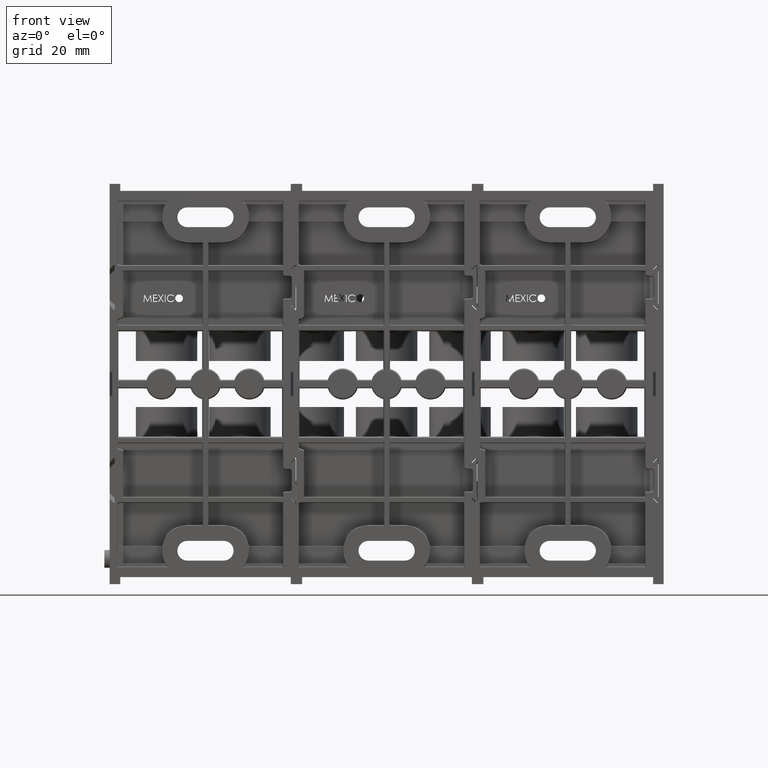
[diagram: clean part render]
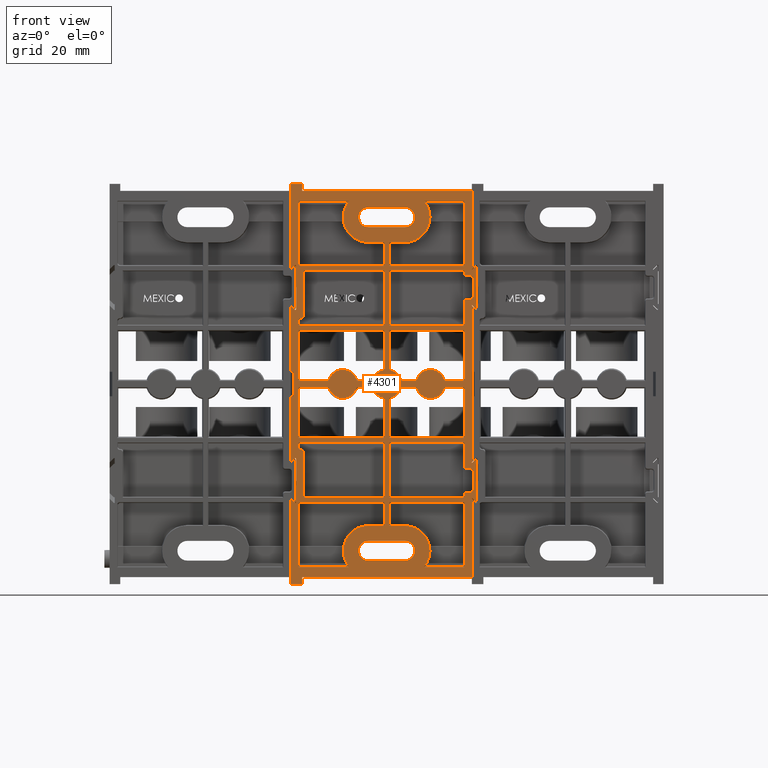
[diagram: same view with one face highlighted and labeled with its STEP entity id]
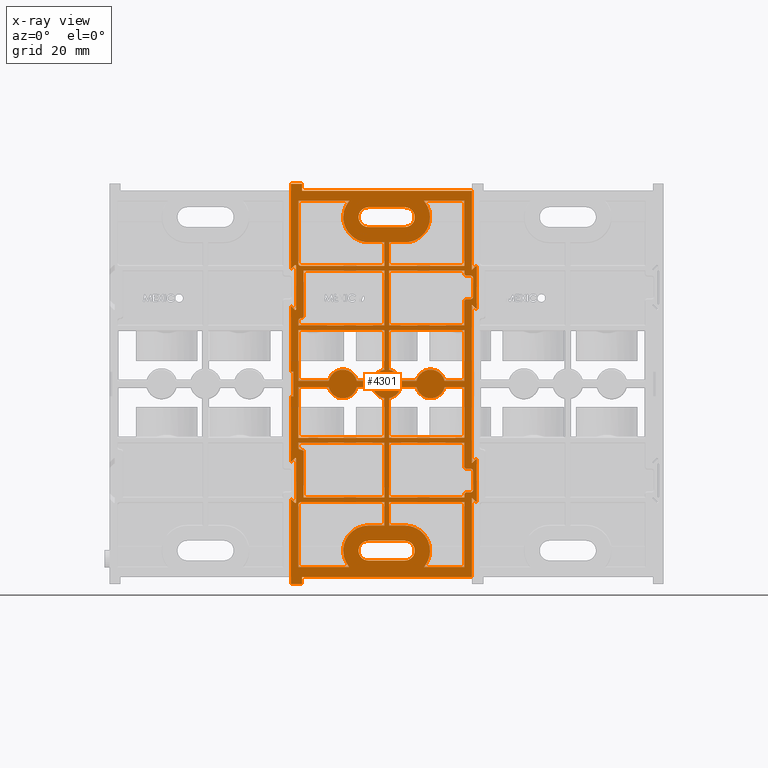
[diagram: x-ray of the same camera — body ghosted, the highlighted face saturated]
A machine part, front view. The second image highlights one B-rep face of the part: STEP entity #4301.
The next image is the same camera in x-ray: the body ghosted, the highlighted face saturated — about 0% of this face is hidden behind the body in this view.
In plain terms, the highlighted planar face has unit normal (0, -1, 0).
Its self-contained STEP definition (entity closure, byte-faithful):
#46 = CARTESIAN_POINT ( 'NONE',  ( 1.285000000000000100, -1.850000000000000800, 1.079161543526955300 ) ) ;
#102 = CARTESIAN_POINT ( 'NONE',  ( 0.1998719300719866100, -1.850000000000000800, -0.04548131169498790400 ) ) ;
#121 = CARTESIAN_POINT ( 'NONE',  ( 1.232018688305012200, -1.850000000000000800, 1.222475285414383700 ) ) ;
#139 = VERTEX_POINT ( 'NONE', #1655 ) ;
#226 = DIRECTION ( 'NONE',  ( 0.0000000000000000000, -1.000000000000000000, 0.0000000000000000000 ) ) ;
#303 = EDGE_CURVE ( 'NONE', #10444, #40195, #5282, .T. ) ;
#324 = ORIENTED_EDGE ( 'NONE', *, *, #47360, .T. ) ;
#328 = VERTEX_POINT ( 'NONE', #50051 ) ;
#377 = VERTEX_POINT ( 'NONE', #8921 ) ;
#465 = ORIENTED_EDGE ( 'NONE', *, *, #22256, .F. ) ;
#468 = CARTESIAN_POINT ( 'NONE',  ( 0.2599999999999999500, -1.850000000000000800, 2.375000000000000000 ) ) ;
#470 = VERTEX_POINT ( 'NONE', #13765 ) ;
#482 = CARTESIAN_POINT ( 'NONE',  ( 0.2599999999999999500, -1.850000000000000800, -2.375000000000000000 ) ) ;
#502 = LINE ( 'NONE', #4679, #32074 ) ;
#508 = ORIENTED_EDGE ( 'NONE', *, *, #15601, .T. ) ;
#611 = DIRECTION ( 'NONE',  ( 1.000000000000000000, -0.0000000000000000000, -0.0000000000000000000 ) ) ;
#619 = VERTEX_POINT ( 'NONE', #10617 ) ;
#640 = LINE ( 'NONE', #17700, #50759 ) ;
#707 = DIRECTION ( 'NONE',  ( 0.0000000000000000000, 0.0000000000000000000, -1.000000000000000000 ) ) ;
#724 = VERTEX_POINT ( 'NONE', #34130 ) ;
#730 = DIRECTION ( 'NONE',  ( 0.0000000000000000000, 0.0000000000000000000, -1.000000000000000000 ) ) ;
#737 = CARTESIAN_POINT ( 'NONE',  ( -1.257018688305011800, -1.850000000000000800, -1.717975981025461800 ) ) ;
#768 = VERTEX_POINT ( 'NONE', #46255 ) ;
#820 = ORIENTED_EDGE ( 'NONE', *, *, #17301, .T. ) ;
#869 = CARTESIAN_POINT ( 'NONE',  ( -1.222024018974538400, -1.850000000000000800, -0.9370186883050121200 ) ) ;
#939 = VERTEX_POINT ( 'NONE', #19808 ) ;
#947 = CARTESIAN_POINT ( 'NONE',  ( -1.327472232502674700, -1.850000000000000800, -0.1749999999999999900 ) ) ;
#1006 = CARTESIAN_POINT ( 'NONE',  ( -1.257018688305011800, -1.850000000000000800, 0.8750000000000000000 ) ) ;
#1021 = VECTOR ( 'NONE', #41507, 39.37007874015748100 ) ;
#1038 = DIRECTION ( 'NONE',  ( 0.0000000000000000000, -1.000000000000000000, 0.0000000000000000000 ) ) ;
#1079 = CARTESIAN_POINT ( 'NONE',  ( -1.257018688305011800, -1.850000000000000800, 0.9225247145856162500 ) ) ;
#1118 = VECTOR ( 'NONE', #43806, 39.37007874015748100 ) ;
#1196 = EDGE_CURVE ( 'NONE', #31441, #47107, #43339, .T. ) ;
#1210 = VERTEX_POINT ( 'NONE', #40330 ) ;
#1218 = EDGE_CURVE ( 'NONE', #12463, #25881, #3711, .T. ) ;
#1262 = LINE ( 'NONE', #37824, #10585 ) ;
#1371 = VERTEX_POINT ( 'NONE', #8987 ) ;
#1400 = CARTESIAN_POINT ( 'NONE',  ( 0.2599999999999999500, -1.850000000000000800, -2.017018688305011900 ) ) ;
#1496 = LINE ( 'NONE', #43193, #42315 ) ;
#1510 = LINE ( 'NONE', #17025, #31822 ) ;
#1518 = VECTOR ( 'NONE', #22923, 39.37007874015748100 ) ;
#1595 = CARTESIAN_POINT ( 'NONE',  ( -1.222024018974538200, -1.850000000000000800, 0.9370186883050121200 ) ) ;
#1619 = VERTEX_POINT ( 'NONE', #50199 ) ;
#1655 = CARTESIAN_POINT ( 'NONE',  ( 1.215000000000000100, -1.850000000000000800, 1.124999999999999800 ) ) ;
#1670 = VERTEX_POINT ( 'NONE', #18939 ) ;
#1671 = VECTOR ( 'NONE', #5397, 39.37007874015748100 ) ;
#1748 = EDGE_CURVE ( 'NONE', #6537, #25898, #10423, .T. ) ;
#1776 = VERTEX_POINT ( 'NONE', #31682 ) ;
#1864 = PLANE ( 'NONE',  #22678 ) ;
#1894 = CARTESIAN_POINT ( 'NONE',  ( 0.2599999999999999500, -1.850000000000000800, -2.515499999999999800 ) ) ;
#1895 = CARTESIAN_POINT ( 'NONE',  ( -1.307061377159181000, -1.850000000000000800, 1.057061377159180800 ) ) ;
#1971 = LINE ( 'NONE', #39141, #11297 ) ;
#2004 = VECTOR ( 'NONE', #6865, 39.37007874015748100 ) ;
#2013 = LINE ( 'NONE', #47305, #23052 ) ;
#2027 = ORIENTED_EDGE ( 'NONE', *, *, #16940, .F. ) ;
#2057 = EDGE_CURVE ( 'NONE', #40195, #37356, #43742, .T. ) ;
#2171 = DIRECTION ( 'NONE',  ( -0.0000000000000000000, -0.0000000000000000000, 1.000000000000000000 ) ) ;
#2193 = CARTESIAN_POINT ( 'NONE',  ( 0.03298131169498741400, -1.850000000000000800, 2.750000000000000000 ) ) ;
#2316 = ORIENTED_EDGE ( 'NONE', *, *, #10207, .T. ) ;
#2318 = VECTOR ( 'NONE', #44623, 39.37007874015748900 ) ;
#2319 = VECTOR ( 'NONE', #29617, 39.37007874015748100 ) ;
#2335 = EDGE_CURVE ( 'NONE', #50104, #2423, #22553, .T. ) ;
#2355 = EDGE_CURVE ( 'NONE', #29151, #32297, #21342, .T. ) ;
#2397 = VECTOR ( 'NONE', #34378, 39.37007874015748100 ) ;
#2402 =( BOUNDED_CURVE ( )  B_SPLINE_CURVE ( 3, ( #39551, #35398, #43530, #19891 ),
 .UNSPECIFIED., .F., .F. ) 
 B_SPLINE_CURVE_WITH_KNOTS ( ( 4, 4 ),
 ( 2.356346783439925700, 3.926838523739660600 ),
 .UNSPECIFIED. ) 
 CURVE ( )  GEOMETRIC_REPRESENTATION_ITEM ( )  RATIONAL_B_SPLINE_CURVE ( ( 1.000000000000000000, 0.8048096403827855700, 0.8048096403827855700, 1.000000000000000000 ) ) 
 REPRESENTATION_ITEM ( '' )  );
#2423 = VERTEX_POINT ( 'NONE', #7918 ) ;
#2442 = CARTESIAN_POINT ( 'NONE',  ( -1.364999999999999800, -1.850000000000000800, 6.442327095996947900 ) ) ;
#2490 = VECTOR ( 'NONE', #3805, 39.37007874015748100 ) ;
#2501 = VERTEX_POINT ( 'NONE', #8414 ) ;
#2558 = ORIENTED_EDGE ( 'NONE', *, *, #14823, .T. ) ;
#2582 = ORIENTED_EDGE ( 'NONE', *, *, #43355, .T. ) ;
#2617 = CARTESIAN_POINT ( 'NONE',  ( -0.03298131169498778900, -1.850000000000000800, -1.617018688305011900 ) ) ;
#2748 = CARTESIAN_POINT ( 'NONE',  ( -1.214999999999999600, -1.850000000000000800, -0.7670186883050119600 ) ) ;
#2767 = CARTESIAN_POINT ( 'NONE',  ( -0.5318651453719216400, -1.850000000000000800, -2.607894745013209700 ) ) ;
#2807 = ORIENTED_EDGE ( 'NONE', *, *, #1218, .T. ) ;
#2847 = CARTESIAN_POINT ( 'NONE',  ( -1.289999999999999800, -1.850000000000000800, 1.710000000000000400 ) ) ;
#2881 = ORIENTED_EDGE ( 'NONE', *, *, #24807, .T. ) ;
#2899 = CARTESIAN_POINT ( 'NONE',  ( -1.215000000000000100, -1.850000000000000800, -2.850060954429881800 ) ) ;
#2906 = CARTESIAN_POINT ( 'NONE',  ( -1.196512662024407500, -1.850000000000000800, -0.9370186883050122300 ) ) ;
#2951 = CARTESIAN_POINT ( 'NONE',  ( 1.275342426998238100, -1.850000000000000800, 1.685342426998238700 ) ) ;
#2959 = CARTESIAN_POINT ( 'NONE',  ( -1.215000000000000100, -1.850000000000000800, -2.607894745013210200 ) ) ;
#3122 = CARTESIAN_POINT ( 'NONE',  ( 0.03298131169498773300, -1.850000000000000800, 1.617018688305011900 ) ) ;
#3185 = CARTESIAN_POINT ( 'NONE',  ( 0.2600000000000000600, -1.850000000000000800, 2.234499999999999700 ) ) ;
#3192 = VECTOR ( 'NONE', #39997, 39.37007874015748100 ) ;
#3248 = LINE ( 'NONE', #2847, #2004 ) ;
#3279 = CARTESIAN_POINT ( 'NONE',  ( -1.242524714585615800, -1.850000000000000500, 1.682981311694987900 ) ) ;
#3283 = EDGE_CURVE ( 'NONE', #10132, #40788, #24882, .T. ) ;
#3407 = CARTESIAN_POINT ( 'NONE',  ( -0.03298131169498782400, -1.850000000000000800, 2.750000000000000000 ) ) ;
#3479 = ORIENTED_EDGE ( 'NONE', *, *, #39852, .F. ) ;
#3498 = ORIENTED_EDGE ( 'NONE', *, *, #50160, .F. ) ;
#3502 = VECTOR ( 'NONE', #26913, 39.37007874015748100 ) ;
#3586 = EDGE_CURVE ( 'NONE', #13919, #328, #20771, .T. ) ;
#3645 = CARTESIAN_POINT ( 'NONE',  ( -0.2599999999999999500, -1.850000000000000800, -2.375000000000000000 ) ) ;
#3711 =( BOUNDED_CURVE ( )  B_SPLINE_CURVE ( 3, ( #4728, #28591, #20673, #8903 ),
 .UNSPECIFIED., .F., .T. ) 
 B_SPLINE_CURVE_WITH_KNOTS ( ( 4, 4 ),
 ( 5.499156671652540000, 7.853981633974469500 ),
 .UNSPECIFIED. ) 
 CURVE ( )  GEOMETRIC_REPRESENTATION_ITEM ( )  RATIONAL_B_SPLINE_CURVE ( ( 1.000000000000000000, 0.5888773213196978300, 0.5888773213196978300, 1.000000000000000000 ) ) 
 REPRESENTATION_ITEM ( '' )  );
#3715 =( BOUNDED_CURVE ( )  B_SPLINE_CURVE ( 3, ( #32530, #12894, #40491, #16858 ),
 .UNSPECIFIED., .F., .F. ) 
 B_SPLINE_CURVE_WITH_KNOTS ( ( 4, 4 ),
 ( 5.499156671652520400, 7.853981633974482800 ),
 .UNSPECIFIED. ) 
 CURVE ( )  GEOMETRIC_REPRESENTATION_ITEM ( )  RATIONAL_B_SPLINE_CURVE ( ( 1.000000000000000000, 0.5888773213196876200, 0.5888773213196876200, 1.000000000000000000 ) ) 
 REPRESENTATION_ITEM ( '' )  );
#3721 = EDGE_CURVE ( 'NONE', #36309, #14735, #8364, .T. ) ;
#3760 = VERTEX_POINT ( 'NONE', #18157 ) ;
#3805 = DIRECTION ( 'NONE',  ( -1.000000000000000000, 0.0000000000000000000, -5.925917556755452100E-017 ) ) ;
#3872 = DIRECTION ( 'NONE',  ( 0.0000000000000000000, -1.000000000000000000, 0.0000000000000000000 ) ) ;
#3875 = VERTEX_POINT ( 'NONE', #11225 ) ;
#3892 = CARTESIAN_POINT ( 'NONE',  ( -1.257018688305011800, -1.850000000000000800, -0.9225247145856166900 ) ) ;
#3906 = ORIENTED_EDGE ( 'NONE', *, *, #303, .F. ) ;
#3919 = CARTESIAN_POINT ( 'NONE',  ( -1.215000000000000100, -1.850000000000000800, -1.617018688305011900 ) ) ;
#3963 = EDGE_CURVE ( 'NONE', #14735, #36213, #36133, .T. ) ;
#3964 = ORIENTED_EDGE ( 'NONE', *, *, #32421, .T. ) ;
#4019 = DIRECTION ( 'NONE',  ( -1.000000000000000000, 0.0000000000000000000, 0.0000000000000000000 ) ) ;
#4070 = DIRECTION ( 'NONE',  ( -1.000000000000000000, 0.0000000000000000000, 0.0000000000000000000 ) ) ;
#4117 = CIRCLE ( 'NONE', #14470, 0.2049813116949878200 ) ;
#4209 = CARTESIAN_POINT ( 'NONE',  ( 1.217524714585615600, -1.850000000000000800, -1.542018688305013300 ) ) ;
#4218 = VERTEX_POINT ( 'NONE', #6724 ) ;
#4219 = ORIENTED_EDGE ( 'NONE', *, *, #30705, .T. ) ;
#4223 = DIRECTION ( 'NONE',  ( 1.000000000000000000, 0.0000000000000000000, -8.469961146307368400E-016 ) ) ;
#4271 = CARTESIAN_POINT ( 'NONE',  ( -0.5318651453719216400, -1.850000000000000800, 2.607894745013209700 ) ) ;
#4301 = ADVANCED_FACE ( 'NONE', ( #20002, #39746, #18741, #29217, #8227, #50252, #49004, #38511, #27979, #17502, #6964, #47766, #37269, #26713, #16259 ), #1864, .T. ) ;
#4329 = ORIENTED_EDGE ( 'NONE', *, *, #47440, .T. ) ;
#4409 = VERTEX_POINT ( 'NONE', #10535 ) ;
#4431 = CARTESIAN_POINT ( 'NONE',  ( 1.107018688305012400, -1.850000000000000800, 0.7670186883050120800 ) ) ;
#4441 = LINE ( 'NONE', #49999, #36001 ) ;
#4446 = CARTESIAN_POINT ( 'NONE',  ( 0.0000000000000000000, -1.850000000000000800, 0.0000000000000000000 ) ) ;
#4497 = DIRECTION ( 'NONE',  ( 0.0000000000000000000, 0.0000000000000000000, -1.000000000000000000 ) ) ;
#4508 = DIRECTION ( 'NONE',  ( 0.0000000000000000000, 0.0000000000000000000, 1.000000000000000000 ) ) ;
#4576 = VECTOR ( 'NONE', #13035, 39.37007874015748100 ) ;
#4679 = CARTESIAN_POINT ( 'NONE',  ( -1.215000000000000100, -1.850000000000000800, -1.617018688305011900 ) ) ;
#4728 = CARTESIAN_POINT ( 'NONE',  ( -1.307061377159179900, -1.850000000000000800, -1.057061377159180800 ) ) ;
#4738 = LINE ( 'NONE', #35150, #15291 ) ;
#4785 = DIRECTION ( 'NONE',  ( 1.000000000000000000, 0.0000000000000000000, 0.0000000000000000000 ) ) ;
#4836 = LINE ( 'NONE', #13789, #2319 ) ;
#4871 = ORIENTED_EDGE ( 'NONE', *, *, #6015, .T. ) ;
#4896 = LINE ( 'NONE', #40613, #25940 ) ;
#4939 = EDGE_LOOP ( 'NONE', ( #45533, #48160, #24105, #16747, #30934, #50994, #9734 ) ) ;
#4954 = CARTESIAN_POINT ( 'NONE',  ( 0.03298131169498783000, -1.850000000000000800, 2.017018688305011900 ) ) ;
#5017 = VECTOR ( 'NONE', #11576, 39.37007874015748100 ) ;
#5058 = EDGE_LOOP ( 'NONE', ( #10370, #508, #37107, #27666, #29209, #16729, #29822 ) ) ;
#5097 = DIRECTION ( 'NONE',  ( 0.7071067811865434600, 0.0000000000000000000, -0.7071067811865516800 ) ) ;
#5113 = CARTESIAN_POINT ( 'NONE',  ( -1.242524714585616200, -1.850000000000000800, 0.9370186883050121200 ) ) ;
#5126 =( BOUNDED_CURVE ( )  B_SPLINE_CURVE ( 3, ( #12920, #1079, #5113, #32737 ),
 .UNSPECIFIED., .F., .T. ) 
 B_SPLINE_CURVE_WITH_KNOTS ( ( 4, 4 ),
 ( 2.356346783439925700, 3.926838523739664600 ),
 .UNSPECIFIED. ) 
 CURVE ( )  GEOMETRIC_REPRESENTATION_ITEM ( )  RATIONAL_B_SPLINE_CURVE ( ( 1.000000000000000000, 0.8048096403827846900, 0.8048096403827846900, 1.000000000000000000 ) ) 
 REPRESENTATION_ITEM ( '' )  );
#5143 = AXIS2_PLACEMENT_3D ( 'NONE', #10321, #37973, #14307 ) ;
#5169 = VECTOR ( 'NONE', #2171, 39.37007874015748100 ) ;
#5207 = CARTESIAN_POINT ( 'NONE',  ( -1.182018688305012100, -1.850000000000000500, 0.9515126620244081000 ) ) ;
#5237 = CARTESIAN_POINT ( 'NONE',  ( -1.215000000000000100, -1.850000000000000800, 0.7670186883050123000 ) ) ;
#5247 = ORIENTED_EDGE ( 'NONE', *, *, #7093, .T. ) ;
#5261 = VECTOR ( 'NONE', #36809, 39.37007874015748100 ) ;
#5282 = LINE ( 'NONE', #26228, #46109 ) ;
#5303 = CARTESIAN_POINT ( 'NONE',  ( -1.215000000000000100, -1.850000000000000800, -1.682981311694987900 ) ) ;
#5305 = VERTEX_POINT ( 'NONE', #48155 ) ;
#5341 = VECTOR ( 'NONE', #21133, 39.37007874015748100 ) ;
#5346 = CARTESIAN_POINT ( 'NONE',  ( 1.197024018974538500, -1.850000000000000800, 1.542018688305012200 ) ) ;
#5383 = EDGE_LOOP ( 'NONE', ( #8235, #16193, #48147, #19394, #43523, #21366 ) ) ;
#5397 = DIRECTION ( 'NONE',  ( -0.0000000000000000000, -0.0000000000000000000, -1.000000000000000000 ) ) ;
#5405 = EDGE_CURVE ( 'NONE', #8179, #26168, #21587, .T. ) ;
#5424 = CARTESIAN_POINT ( 'NONE',  ( -0.03298131169498788600, -1.850000000000000800, -0.8329813116949879000 ) ) ;
#5601 = ORIENTED_EDGE ( 'NONE', *, *, #3586, .F. ) ;
#5640 = CARTESIAN_POINT ( 'NONE',  ( 1.232018688305011500, -1.850000000000000800, -1.242975981025461500 ) ) ;
#5740 = DIRECTION ( 'NONE',  ( 1.000000000000000000, -0.0000000000000000000, -0.0000000000000000000 ) ) ;
#5838 = DIRECTION ( 'NONE',  ( 1.000000000000000000, -0.0000000000000000000, -0.0000000000000000000 ) ) ;
#5885 = VECTOR ( 'NONE', #47649, 39.37007874015748100 ) ;
#5889 = CARTESIAN_POINT ( 'NONE',  ( 1.275342426998238100, -1.850000000000000800, -1.685342426998238700 ) ) ;
#5908 = CARTESIAN_POINT ( 'NONE',  ( 1.285000000000000100, -1.850000000000000800, 1.068676614042920500 ) ) ;
#5910 = CARTESIAN_POINT ( 'NONE',  ( -1.215000000000000100, -1.850000000000000800, 0.8329813116949875700 ) ) ;
#5942 = CARTESIAN_POINT ( 'NONE',  ( -1.215000000000001400, -1.850000000000000800, 0.04548131169498816800 ) ) ;
#5946 = DIRECTION ( 'NONE',  ( -0.0000000000000000000, -0.0000000000000000000, -1.000000000000000000 ) ) ;
#5962 = CARTESIAN_POINT ( 'NONE',  ( 1.121512662024408200, -1.850000000000000500, 1.542018688305012200 ) ) ;
#6015 = EDGE_CURVE ( 'NONE', #50686, #16249, #12228, .T. ) ;
#6039 = EDGE_CURVE ( 'NONE', #31441, #33875, #36399, .T. ) ;
#6065 = VERTEX_POINT ( 'NONE', #28887 ) ;
#6205 = DIRECTION ( 'NONE',  ( -1.252096997096121100E-016, 0.0000000000000000000, 1.000000000000000000 ) ) ;
#6210 = CARTESIAN_POINT ( 'NONE',  ( -1.364999999999998700, -1.850000000000000800, -1.115000000000000200 ) ) ;
#6223 = LINE ( 'NONE', #28469, #27223 ) ;
#6231 = CARTESIAN_POINT ( 'NONE',  ( 1.107018688305012400, -1.850000000000000800, -1.172986642364514300 ) ) ;
#6304 = VERTEX_POINT ( 'NONE', #23449 ) ;
#6355 = VECTOR ( 'NONE', #7371, 39.37007874015748100 ) ;
#6378 = VERTEX_POINT ( 'NONE', #19866 ) ;
#6411 = AXIS2_PLACEMENT_3D ( 'NONE', #4446, #32083, #8449 ) ;
#6463 = ORIENTED_EDGE ( 'NONE', *, *, #42111, .F. ) ;
#6537 = VERTEX_POINT ( 'NONE', #40535 ) ;
#6550 = EDGE_CURVE ( 'NONE', #22302, #26854, #16061, .T. ) ;
#6614 = CARTESIAN_POINT ( 'NONE',  ( -0.03298131169498783000, -1.850000000000000800, -2.017018688305011900 ) ) ;
#6618 = VERTEX_POINT ( 'NONE', #5640 ) ;
#6650 = CARTESIAN_POINT ( 'NONE',  ( 1.197024018974538000, -1.850000000000000800, -1.207981311694988200 ) ) ;
#6694 = CARTESIAN_POINT ( 'NONE',  ( 0.0000000000000000000, -1.850000000000000800, 0.0000000000000000000 ) ) ;
#6703 = DIRECTION ( 'NONE',  ( 0.0000000000000000000, -1.000000000000000000, 0.0000000000000000000 ) ) ;
#6711 = DIRECTION ( 'NONE',  ( 0.0000000000000000000, 0.0000000000000000000, -1.000000000000000000 ) ) ;
#6716 = DIRECTION ( 'NONE',  ( 2.008711760047251600E-016, 0.0000000000000000000, 1.000000000000000000 ) ) ;
#6724 = CARTESIAN_POINT ( 'NONE',  ( 0.03298131169498812200, -1.850000000000000800, -0.2023105810951957600 ) ) ;
#6725 = ORIENTED_EDGE ( 'NONE', *, *, #26601, .T. ) ;
#6754 = CARTESIAN_POINT ( 'NONE',  ( 0.03298131169498783000, -1.850000000000000800, 1.682981311694987900 ) ) ;
#6763 = EDGE_CURVE ( 'NONE', #619, #23976, #45674, .T. ) ;
#6797 = ORIENTED_EDGE ( 'NONE', *, *, #8913, .T. ) ;
#6819 = CIRCLE ( 'NONE', #13063, 0.3579813116949879200 ) ;
#6865 = DIRECTION ( 'NONE',  ( -0.0000000000000000000, -0.0000000000000000000, 1.000000000000000000 ) ) ;
#6904 = DIRECTION ( 'NONE',  ( 1.000000000000000000, 1.551219278919984100E-016, 5.416977087031329900E-018 ) ) ;
#6961 = VERTEX_POINT ( 'NONE', #34297 ) ;
#6964 = FACE_BOUND ( 'NONE', #12418, .T. ) ;
#6968 = DIRECTION ( 'NONE',  ( 1.000000000000000000, -0.0000000000000000000, -0.0000000000000000000 ) ) ;
#7082 = ORIENTED_EDGE ( 'NONE', *, *, #8548, .T. ) ;
#7093 = EDGE_CURVE ( 'NONE', #470, #8585, #4738, .T. ) ;
#7111 = CARTESIAN_POINT ( 'NONE',  ( 0.1998719300719865600, -1.850000000000000800, 0.04548131169498803600 ) ) ;
#7191 = LINE ( 'NONE', #18307, #46773 ) ;
#7205 = DIRECTION ( 'NONE',  ( -1.000000000000000000, 0.0000000000000000000, 0.0000000000000000000 ) ) ;
#7212 = VECTOR ( 'NONE', #10247, 39.37007874015748100 ) ;
#7313 = EDGE_LOOP ( 'NONE', ( #17987, #17269, #39505, #45224, #30029, #31980, #27460, #18356, #27873, #9097, #50229, #7082 ) ) ;
#7320 = ORIENTED_EDGE ( 'NONE', *, *, #15051, .F. ) ;
#7365 = VECTOR ( 'NONE', #21694, 39.37007874015748100 ) ;
#7371 = DIRECTION ( 'NONE',  ( 1.000000000000000000, 1.551219278919984100E-016, -5.416977087031329900E-018 ) ) ;
#7390 = VERTEX_POINT ( 'NONE', #26174 ) ;
#7412 = DIRECTION ( 'NONE',  ( 0.0000000000000000000, 0.0000000000000000000, -1.000000000000000000 ) ) ;
#7413 = LINE ( 'NONE', #947, #48197 ) ;
#7496 = VECTOR ( 'NONE', #15394, 39.37007874015748100 ) ;
#7542 = VERTEX_POINT ( 'NONE', #15294 ) ;
#7669 = DIRECTION ( 'NONE',  ( 0.0000000000000000000, 0.0000000000000000000, 1.000000000000000000 ) ) ;
#7737 = VECTOR ( 'NONE', #6711, 39.37007874015748100 ) ;
#7746 = DIRECTION ( 'NONE',  ( 0.7071067811865435800, 0.0000000000000000000, -0.7071067811865513500 ) ) ;
#7776 = DIRECTION ( 'NONE',  ( 1.000000000000000000, -4.445050717197745200E-030, -0.0000000000000000000 ) ) ;
#7816 = CARTESIAN_POINT ( 'NONE',  ( -1.257018688305011800, -1.850000000000000800, -0.9020240189745386500 ) ) ;
#7836 = VERTEX_POINT ( 'NONE', #49411 ) ;
#7896 = DIRECTION ( 'NONE',  ( -0.7071067811865434600, -0.0000000000000000000, -0.7071067811865516800 ) ) ;
#7908 = CARTESIAN_POINT ( 'NONE',  ( -0.2599999999999999500, -1.850000000000000800, 2.017018688305011900 ) ) ;
#7918 = CARTESIAN_POINT ( 'NONE',  ( 0.03298131169498812900, -1.850000000000000800, 0.7670186883050120800 ) ) ;
#8097 = VECTOR ( 'NONE', #5740, 39.37007874015748100 ) ;
#8125 = CARTESIAN_POINT ( 'NONE',  ( 1.197024018974538500, -1.850000000000000800, 1.207981311694987800 ) ) ;
#8153 = VECTOR ( 'NONE', #6904, 39.37007874015748100 ) ;
#8173 = ORIENTED_EDGE ( 'NONE', *, *, #39336, .T. ) ;
#8179 = VERTEX_POINT ( 'NONE', #35404 ) ;
#8216 = CARTESIAN_POINT ( 'NONE',  ( 1.285000000000000100, -1.850000000000000800, 1.670838456473044700 ) ) ;
#8227 = FACE_BOUND ( 'NONE', #43713, .T. ) ;
#8235 = ORIENTED_EDGE ( 'NONE', *, *, #10941, .T. ) ;
#8305 = EDGE_CURVE ( 'NONE', #3760, #21815, #49661, .T. ) ;
#8364 = LINE ( 'NONE', #2193, #38657 ) ;
#8377 = EDGE_CURVE ( 'NONE', #36804, #7390, #18656, .T. ) ;
#8414 = CARTESIAN_POINT ( 'NONE',  ( 1.107018688305012400, -1.850000000000000800, 2.607894745013209700 ) ) ;
#8449 = DIRECTION ( 'NONE',  ( 0.0000000000000000000, 0.0000000000000000000, -1.000000000000000000 ) ) ;
#8457 = EDGE_CURVE ( 'NONE', #37612, #23254, #39023, .T. ) ;
#8488 = VECTOR ( 'NONE', #38864, 39.37007874015748100 ) ;
#8548 = EDGE_CURVE ( 'NONE', #1670, #23976, #27466, .T. ) ;
#8562 = VECTOR ( 'NONE', #33912, 39.37007874015748100 ) ;
#8585 = VERTEX_POINT ( 'NONE', #47834 ) ;
#8611 = CARTESIAN_POINT ( 'NONE',  ( 1.107018688305012400, -1.850000000000000800, 1.172986642364514100 ) ) ;
#8744 = LINE ( 'NONE', #25826, #39021 ) ;
#8797 = CARTESIAN_POINT ( 'NONE',  ( 1.107018688305012400, -1.850000000000000800, 1.682981311694987900 ) ) ;
#8903 = CARTESIAN_POINT ( 'NONE',  ( -1.289999999999998700, -1.850000000000000800, -1.064161543526955800 ) ) ;
#8913 = EDGE_CURVE ( 'NONE', #1619, #7542, #29774, .T. ) ;
#8915 = AXIS2_PLACEMENT_3D ( 'NONE', #3645, #31302, #7669 ) ;
#8921 = CARTESIAN_POINT ( 'NONE',  ( 0.4251280699280133300, -1.850000000000000800, -0.04548131169498790400 ) ) ;
#8972 = DIRECTION ( 'NONE',  ( -0.7071067811865435800, -0.0000000000000000000, -0.7071067811865513500 ) ) ;
#8987 = CARTESIAN_POINT ( 'NONE',  ( -1.364999999999999800, -1.850000000000000800, 2.850060954429881800 ) ) ;
#9097 = ORIENTED_EDGE ( 'NONE', *, *, #18401, .T. ) ;
#9105 = CARTESIAN_POINT ( 'NONE',  ( -1.215000000000000100, -1.850000000000000800, 2.607894745013209700 ) ) ;
#9107 = VECTOR ( 'NONE', #27449, 39.37007874015748100 ) ;
#9109 = CARTESIAN_POINT ( 'NONE',  ( -0.6250000000000000000, -1.850000000000000800, 0.0000000000000000000 ) ) ;
#9122 = VECTOR ( 'NONE', #14533, 39.37007874015748100 ) ;
#9158 = VECTOR ( 'NONE', #36868, 39.37007874015748100 ) ;
#9176 = LINE ( 'NONE', #25667, #27679 ) ;
#9239 = VECTOR ( 'NONE', #27909, 39.37007874015748100 ) ;
#9260 = CARTESIAN_POINT ( 'NONE',  ( -1.202781454550247800, -1.850000000000000800, 2.750000000000000000 ) ) ;
#9392 = EDGE_CURVE ( 'NONE', #21403, #50104, #30876, .T. ) ;
#9693 = ORIENTED_EDGE ( 'NONE', *, *, #33185, .T. ) ;
#9734 = ORIENTED_EDGE ( 'NONE', *, *, #49076, .T. ) ;
#9748 = EDGE_CURVE ( 'NONE', #13700, #6961, #32222, .T. ) ;
#9858 = VECTOR ( 'NONE', #36912, 39.37007874015748100 ) ;
#9888 = ORIENTED_EDGE ( 'NONE', *, *, #8305, .T. ) ;
#9892 = CARTESIAN_POINT ( 'NONE',  ( 1.285000000000000400, -1.850000000000000800, -1.681323385957080200 ) ) ;
#9970 = ORIENTED_EDGE ( 'NONE', *, *, #13135, .T. ) ;
#9983 = VERTEX_POINT ( 'NONE', #24395 ) ;
#9991 = CARTESIAN_POINT ( 'NONE',  ( -1.215000000000000100, -1.850000000000000800, 2.750000000000000000 ) ) ;
#10132 = VERTEX_POINT ( 'NONE', #25250 ) ;
#10187 = EDGE_CURVE ( 'NONE', #9983, #41486, #33803, .T. ) ;
#10197 = DIRECTION ( 'NONE',  ( -0.7071067811865435800, -0.0000000000000000000, -0.7071067811865513500 ) ) ;
#10207 = EDGE_CURVE ( 'NONE', #1776, #37612, #24625, .T. ) ;
#10247 = DIRECTION ( 'NONE',  ( 0.7071067811865434600, 0.0000000000000000000, -0.7071067811865516800 ) ) ;
#10264 = DIRECTION ( 'NONE',  ( -0.0000000000000000000, -0.0000000000000000000, -1.000000000000000000 ) ) ;
#10274 = CARTESIAN_POINT ( 'NONE',  ( -1.215000000000000100, -1.850000000000000800, -0.04548131169498790400 ) ) ;
#10295 = CARTESIAN_POINT ( 'NONE',  ( 1.107018688305012400, -1.850000000000000800, 2.750000000000000000 ) ) ;
#10321 = CARTESIAN_POINT ( 'NONE',  ( 0.0000000000000000000, -1.850000000000000800, 0.0000000000000000000 ) ) ;
#10337 = CIRCLE ( 'NONE', #33124, 0.1405000000000000400 ) ;
#10360 = EDGE_CURVE ( 'NONE', #44519, #12210, #25804, .T. ) ;
#10370 = ORIENTED_EDGE ( 'NONE', *, *, #36020, .T. ) ;
#10423 = LINE ( 'NONE', #27688, #45689 ) ;
#10444 = VERTEX_POINT ( 'NONE', #42840 ) ;
#10486 = EDGE_CURVE ( 'NONE', #619, #11747, #2402, .T. ) ;
#10515 = ORIENTED_EDGE ( 'NONE', *, *, #27576, .T. ) ;
#10535 = CARTESIAN_POINT ( 'NONE',  ( -1.289999999999998700, -1.850000000000000800, -1.685838456473044200 ) ) ;
#10545 = VERTEX_POINT ( 'NONE', #40047 ) ;
#10585 = VECTOR ( 'NONE', #14152, 39.37007874015748100 ) ;
#10617 = CARTESIAN_POINT ( 'NONE',  ( 1.142013357635486300, -1.850000000000000800, 1.207981311694987800 ) ) ;
#10661 = VERTEX_POINT ( 'NONE', #40222 ) ;
#10683 = DIRECTION ( 'NONE',  ( 0.0000000000000000000, 0.0000000000000000000, -1.000000000000000000 ) ) ;
#10850 = VECTOR ( 'NONE', #4070, 39.37007874015748100 ) ;
#10941 = EDGE_CURVE ( 'NONE', #2501, #47614, #1510, .T. ) ;
#10947 = VECTOR ( 'NONE', #40304, 39.37007874015748100 ) ;
#10959 = VERTEX_POINT ( 'NONE', #21321 ) ;
#11018 = EDGE_CURVE ( 'NONE', #23254, #34220, #13262, .T. ) ;
#11034 = EDGE_LOOP ( 'NONE', ( #11689, #34651, #37568, #49588, #47591, #40943, #46120 ) ) ;
#11083 = CIRCLE ( 'NONE', #30981, 0.2049813116949878200 ) ;
#11108 = DIRECTION ( 'NONE',  ( -1.000000000000000000, 0.0000000000000000000, 0.0000000000000000000 ) ) ;
#11208 = CARTESIAN_POINT ( 'NONE',  ( -1.215000000000000100, -1.850000000000000800, 0.8329813116949875700 ) ) ;
#11225 = CARTESIAN_POINT ( 'NONE',  ( -0.2599999999999999500, -1.850000000000000800, -2.234499999999999700 ) ) ;
#11241 = CARTESIAN_POINT ( 'NONE',  ( 1.107018688305012400, -1.850000000000000800, 2.750000000000000000 ) ) ;
#11246 = VERTEX_POINT ( 'NONE', #32653 ) ;
#11297 = VECTOR ( 'NONE', #19460, 39.37007874015748100 ) ;
#11306 = VERTEX_POINT ( 'NONE', #21416 ) ;
#11356 = EDGE_CURVE ( 'NONE', #11306, #19235, #39140, .T. ) ;
#11374 = AXIS2_PLACEMENT_3D ( 'NONE', #23935, #226, #27906 ) ;
#11457 = CIRCLE ( 'NONE', #16641, 0.3579813116949879200 ) ;
#11576 = DIRECTION ( 'NONE',  ( -1.000000000000000000, 0.0000000000000000000, 0.0000000000000000000 ) ) ;
#11689 = ORIENTED_EDGE ( 'NONE', *, *, #25587, .T. ) ;
#11728 = EDGE_CURVE ( 'NONE', #29803, #26021, #20806, .T. ) ;
#11734 = CARTESIAN_POINT ( 'NONE',  ( -1.215000000000000100, -1.850000000000000800, 1.617018688305011900 ) ) ;
#11739 = CARTESIAN_POINT ( 'NONE',  ( -1.364999999999999800, -1.850000000000000800, 1.115000000000000200 ) ) ;
#11747 = VERTEX_POINT ( 'NONE', #8611 ) ;
#11874 = LINE ( 'NONE', #3407, #42109 ) ;
#11942 = CARTESIAN_POINT ( 'NONE',  ( 1.197024018974537600, -1.850000000000000800, -1.542018688305011800 ) ) ;
#12048 = CARTESIAN_POINT ( 'NONE',  ( 1.232018688305011500, -1.850000000000000800, -1.507024018974539000 ) ) ;
#12104 = CARTESIAN_POINT ( 'NONE',  ( 1.232018688305012200, -1.850000000000000800, 1.527524714585616300 ) ) ;
#12117 = EDGE_CURVE ( 'NONE', #12463, #46445, #46690, .T. ) ;
#12137 = DIRECTION ( 'NONE',  ( 0.0000000000000000000, 0.0000000000000000000, -1.000000000000000000 ) ) ;
#12185 = EDGE_CURVE ( 'NONE', #46350, #19944, #48515, .T. ) ;
#12188 = ORIENTED_EDGE ( 'NONE', *, *, #46289, .F. ) ;
#12210 = VERTEX_POINT ( 'NONE', #38336 ) ;
#12228 = LINE ( 'NONE', #48068, #10947 ) ;
#12231 = CARTESIAN_POINT ( 'NONE',  ( -1.215000000000002300, -1.850000000000000800, -0.04548131169498598200 ) ) ;
#12235 = CARTESIAN_POINT ( 'NONE',  ( -1.202781454550247800, -1.850000000000000800, 2.750000000000000000 ) ) ;
#12304 = VERTEX_POINT ( 'NONE', #36254 ) ;
#12343 = VECTOR ( 'NONE', #28262, 39.37007874015748100 ) ;
#12366 = CARTESIAN_POINT ( 'NONE',  ( 1.285000000000000100, -1.850000000000000800, -1.079161543526955300 ) ) ;
#12375 = ORIENTED_EDGE ( 'NONE', *, *, #5405, .F. ) ;
#12395 = VECTOR ( 'NONE', #7746, 39.37007874015748900 ) ;
#12398 = CARTESIAN_POINT ( 'NONE',  ( -1.215000000000000100, -1.850000000000000800, -1.207981311694988200 ) ) ;
#12418 = EDGE_LOOP ( 'NONE', ( #324, #2881, #4871, #35510, #31982, #21785, #51329, #2582 ) ) ;
#12463 = VERTEX_POINT ( 'NONE', #21701 ) ;
#12566 = VERTEX_POINT ( 'NONE', #29804 ) ;
#12622 = DIRECTION ( 'NONE',  ( 1.252096997096121100E-016, 0.0000000000000000000, -1.000000000000000000 ) ) ;
#12690 = VERTEX_POINT ( 'NONE', #31178 ) ;
#12713 = CARTESIAN_POINT ( 'NONE',  ( -1.242524714585615800, -1.850000000000000500, -1.682981311694988500 ) ) ;
#12728 = EDGE_CURVE ( 'NONE', #36080, #50412, #1971, .T. ) ;
#12738 = DIRECTION ( 'NONE',  ( 0.0000000000000000000, 0.0000000000000000000, -1.000000000000000000 ) ) ;
#12747 = EDGE_CURVE ( 'NONE', #19765, #41412, #27330, .T. ) ;
#12808 = LINE ( 'NONE', #16581, #23267 ) ;
#12850 = CARTESIAN_POINT ( 'NONE',  ( 1.142013357635486100, -1.850000000000000800, 1.542018688305012200 ) ) ;
#12894 = CARTESIAN_POINT ( 'NONE',  ( -1.299657573001761900, -1.850000000000000800, 1.700342426998237900 ) ) ;
#12920 = CARTESIAN_POINT ( 'NONE',  ( -1.257018688305011800, -1.850000000000000800, 0.9020240189745384300 ) ) ;
#12937 = DIRECTION ( 'NONE',  ( 1.000000000000000000, -0.0000000000000000000, -0.0000000000000000000 ) ) ;
#12954 = EDGE_CURVE ( 'NONE', #4409, #22851, #19650, .T. ) ;
#12960 = LINE ( 'NONE', #39828, #1118 ) ;
#13035 = DIRECTION ( 'NONE',  ( 1.000000000000000000, 0.0000000000000000000, 0.0000000000000000000 ) ) ;
#13048 = EDGE_CURVE ( 'NONE', #6304, #24514, #17391, .T. ) ;
#13063 = AXIS2_PLACEMENT_3D ( 'NONE', #40858, #17185, #44861 ) ;
#13089 = VECTOR ( 'NONE', #12738, 39.37007874015748100 ) ;
#13133 = DIRECTION ( 'NONE',  ( 0.0000000000000000000, 0.0000000000000000000, -1.000000000000000000 ) ) ;
#13135 = EDGE_CURVE ( 'NONE', #31241, #768, #6223, .T. ) ;
#13262 =( BOUNDED_CURVE ( )  B_SPLINE_CURVE ( 3, ( #41527, #37560, #49452, #25818 ),
 .UNSPECIFIED., .F., .T. ) 
 B_SPLINE_CURVE_WITH_KNOTS ( ( 4, 4 ),
 ( 4.712388980384689700, 7.067213942706652000 ),
 .UNSPECIFIED. ) 
 CURVE ( )  GEOMETRIC_REPRESENTATION_ITEM ( )  RATIONAL_B_SPLINE_CURVE ( ( 1.000000000000000000, 0.5888773213196876200, 0.5888773213196876200, 1.000000000000000000 ) ) 
 REPRESENTATION_ITEM ( '' )  );
#13308 = LINE ( 'NONE', #36411, #43561 ) ;
#13333 = CARTESIAN_POINT ( 'NONE',  ( 0.2599999999999999500, -1.850000000000000800, 2.017018688305011900 ) ) ;
#13350 = CARTESIAN_POINT ( 'NONE',  ( 0.2599999999999999500, -1.850000000000000800, 2.515499999999999800 ) ) ;
#13539 = LINE ( 'NONE', #48954, #22738 ) ;
#13657 = CARTESIAN_POINT ( 'NONE',  ( 0.2599999999999999500, -1.850000000000000800, 2.515499999999999800 ) ) ;
#13700 = VERTEX_POINT ( 'NONE', #8216 ) ;
#13712 = LINE ( 'NONE', #12231, #33459 ) ;
#13763 = LINE ( 'NONE', #46138, #33518 ) ;
#13765 = CARTESIAN_POINT ( 'NONE',  ( 0.03298131169498778900, -1.850000000000000800, -1.617018688305011900 ) ) ;
#13775 = EDGE_CURVE ( 'NONE', #11747, #20329, #15956, .T. ) ;
#13789 = CARTESIAN_POINT ( 'NONE',  ( -1.257018688305011800, -1.850000000000000800, 0.8750000000000000000 ) ) ;
#13905 = CARTESIAN_POINT ( 'NONE',  ( 1.215000000000000100, -1.850000000000000800, 1.124999999999999800 ) ) ;
#13919 = VERTEX_POINT ( 'NONE', #33063 ) ;
#14060 = EDGE_CURVE ( 'NONE', #139, #5305, #28237, .T. ) ;
#14152 = DIRECTION ( 'NONE',  ( -0.0000000000000000000, -0.0000000000000000000, 1.000000000000000000 ) ) ;
#14206 = LINE ( 'NONE', #2748, #2397 ) ;
#14214 = VECTOR ( 'NONE', #5097, 39.37007874015748100 ) ;
#14241 = ORIENTED_EDGE ( 'NONE', *, *, #18384, .F. ) ;
#14305 = CARTESIAN_POINT ( 'NONE',  ( -0.4251280699280134400, -1.850000000000000800, 0.04548131169498803600 ) ) ;
#14307 = DIRECTION ( 'NONE',  ( 0.0000000000000000000, 0.0000000000000000000, -1.000000000000000000 ) ) ;
#14312 = VECTOR ( 'NONE', #46988, 39.37007874015748100 ) ;
#14412 = VECTOR ( 'NONE', #51331, 39.37007874015748100 ) ;
#14470 = AXIS2_PLACEMENT_3D ( 'NONE', #30383, #6703, #34339 ) ;
#14486 = CARTESIAN_POINT ( 'NONE',  ( -1.202781454550247800, -1.850000000000000800, 2.850060954429881800 ) ) ;
#14533 = DIRECTION ( 'NONE',  ( 0.0000000000000000000, 0.0000000000000000000, -1.000000000000000000 ) ) ;
#14544 = CARTESIAN_POINT ( 'NONE',  ( -1.257018688305011800, -1.850000000000000800, -0.8329813116949879000 ) ) ;
#14586 = CARTESIAN_POINT ( 'NONE',  ( 0.8248719300719867800, -1.850000000000000800, 0.04548131169498771000 ) ) ;
#14592 = CARTESIAN_POINT ( 'NONE',  ( 1.285000000000000400, -1.850000000000000800, 1.681323385957080200 ) ) ;
#14735 = VERTEX_POINT ( 'NONE', #3122 ) ;
#14769 =( BOUNDED_CURVE ( )  B_SPLINE_CURVE ( 3, ( #46331, #18695, #2906, #30585 ),
 .UNSPECIFIED., .F., .T. ) 
 B_SPLINE_CURVE_WITH_KNOTS ( ( 4, 4 ),
 ( 2.356346783439926100, 3.926838523739660600 ),
 .UNSPECIFIED. ) 
 CURVE ( )  GEOMETRIC_REPRESENTATION_ITEM ( )  RATIONAL_B_SPLINE_CURVE ( ( 1.000000000000000000, 0.8048096403827855700, 0.8048096403827855700, 1.000000000000000000 ) ) 
 REPRESENTATION_ITEM ( '' )  );
#14823 = EDGE_CURVE ( 'NONE', #40159, #3875, #33384, .T. ) ;
#14856 = LINE ( 'NONE', #40045, #34592 ) ;
#14886 = CARTESIAN_POINT ( 'NONE',  ( 0.03298131169498810100, -1.850000000000000800, 0.8750000000000000000 ) ) ;
#14902 = CARTESIAN_POINT ( 'NONE',  ( 1.215000000000000100, -1.850000000000000800, 2.750000000000000000 ) ) ;
#14932 = CIRCLE ( 'NONE', #11374, 0.2049813116949878200 ) ;
#14987 = CIRCLE ( 'NONE', #6411, 0.2049813116949877600 ) ;
#14995 = EDGE_CURVE ( 'NONE', #10959, #470, #502, .T. ) ;
#15004 = CARTESIAN_POINT ( 'NONE',  ( 0.5318651453719216400, -1.850000000000000800, 2.607894745013209700 ) ) ;
#15011 = CARTESIAN_POINT ( 'NONE',  ( 0.03298131169498810100, -1.850000000000000800, 0.8750000000000002200 ) ) ;
#15043 = CARTESIAN_POINT ( 'NONE',  ( -1.289999999999998700, -1.850000000000000800, -1.685838456473044200 ) ) ;
#15051 = EDGE_CURVE ( 'NONE', #35297, #32297, #36425, .T. ) ;
#15168 = DIRECTION ( 'NONE',  ( 1.252096997096121100E-016, 0.0000000000000000000, 1.000000000000000000 ) ) ;
#15243 = CARTESIAN_POINT ( 'NONE',  ( -1.215000000000000100, -1.850000000000000800, 1.682981311694987900 ) ) ;
#15255 = CARTESIAN_POINT ( 'NONE',  ( -1.257018688305011800, -1.850000000000000800, 1.717975981025461100 ) ) ;
#15291 = VECTOR ( 'NONE', #15168, 39.37007874015748100 ) ;
#15294 = CARTESIAN_POINT ( 'NONE',  ( -0.03298131169498796900, -1.850000000000000800, -0.2023105810951957900 ) ) ;
#15347 = LINE ( 'NONE', #2959, #35084 ) ;
#15394 = DIRECTION ( 'NONE',  ( 0.0000000000000000000, 0.0000000000000000000, 1.000000000000000000 ) ) ;
#15421 = VERTEX_POINT ( 'NONE', #35039 ) ;
#15425 =( BOUNDED_CURVE ( )  B_SPLINE_CURVE ( 3, ( #24906, #28858, #5207, #32836 ),
 .UNSPECIFIED., .F., .F. ) 
 B_SPLINE_CURVE_WITH_KNOTS ( ( 4, 4 ),
 ( 2.356346783439929600, 3.926838523739656600 ),
 .UNSPECIFIED. ) 
 CURVE ( )  GEOMETRIC_REPRESENTATION_ITEM ( )  RATIONAL_B_SPLINE_CURVE ( ( 1.000000000000000000, 0.8048096403827873500, 0.8048096403827873500, 1.000000000000000000 ) ) 
 REPRESENTATION_ITEM ( '' )  );
#15463 = CARTESIAN_POINT ( 'NONE',  ( -1.364999999999999800, -1.850000000000000800, -2.850060954429881800 ) ) ;
#15502 = VERTEX_POINT ( 'NONE', #4431 ) ;
#15601 = EDGE_CURVE ( 'NONE', #17098, #18143, #25118, .T. ) ;
#15956 = LINE ( 'NONE', #20487, #26426 ) ;
#15988 = CARTESIAN_POINT ( 'NONE',  ( 1.232018688305011500, -1.850000000000000800, -1.527524714585616800 ) ) ;
#16022 = LINE ( 'NONE', #30262, #35798 ) ;
#16034 = DIRECTION ( 'NONE',  ( 1.000000000000000000, 0.0000000000000000000, 0.0000000000000000000 ) ) ;
#16061 = LINE ( 'NONE', #9105, #45137 ) ;
#16193 = ORIENTED_EDGE ( 'NONE', *, *, #32218, .T. ) ;
#16223 = CARTESIAN_POINT ( 'NONE',  ( 1.197024018974538500, -1.850000000000000800, 1.542018688305012200 ) ) ;
#16249 = VERTEX_POINT ( 'NONE', #869 ) ;
#16259 = FACE_BOUND ( 'NONE', #28248, .T. ) ;
#16272 = EDGE_CURVE ( 'NONE', #8179, #23417, #11457, .T. ) ;
#16311 = CARTESIAN_POINT ( 'NONE',  ( 0.03298131169498783000, -1.850000000000000800, -2.017018688305011900 ) ) ;
#16338 = EDGE_CURVE ( 'NONE', #44075, #12566, #16361, .T. ) ;
#16361 = LINE ( 'NONE', #45355, #37382 ) ;
#16408 = ORIENTED_EDGE ( 'NONE', *, *, #2355, .T. ) ;
#16494 = CARTESIAN_POINT ( 'NONE',  ( 1.107018688305012400, -1.850000000000000800, 2.750000000000000000 ) ) ;
#16525 = CARTESIAN_POINT ( 'NONE',  ( -1.215000000000000100, -1.850000000000000800, 0.04548131169498803600 ) ) ;
#16572 = VECTOR ( 'NONE', #26470, 39.37007874015748100 ) ;
#16581 = CARTESIAN_POINT ( 'NONE',  ( 1.215000000000000100, -1.850000000000000800, 1.625000000000000000 ) ) ;
#16620 = DIRECTION ( 'NONE',  ( 0.0000000000000000000, 0.0000000000000000000, -1.000000000000000000 ) ) ;
#16641 = AXIS2_PLACEMENT_3D ( 'NONE', #24769, #1038, #28732 ) ;
#16729 = ORIENTED_EDGE ( 'NONE', *, *, #45256, .T. ) ;
#16747 = ORIENTED_EDGE ( 'NONE', *, *, #37131, .T. ) ;
#16813 = EDGE_CURVE ( 'NONE', #9983, #50866, #14856, .T. ) ;
#16837 = CARTESIAN_POINT ( 'NONE',  ( -1.222024018974538400, -1.850000000000000800, -1.682981311694987900 ) ) ;
#16858 = CARTESIAN_POINT ( 'NONE',  ( -1.289999999999999800, -1.850000000000000800, 1.685838456473044200 ) ) ;
#16898 = VECTOR ( 'NONE', #33533, 39.37007874015748100 ) ;
#16925 = DIRECTION ( 'NONE',  ( -0.0000000000000000000, -0.0000000000000000000, 1.000000000000000000 ) ) ;
#16940 = EDGE_CURVE ( 'NONE', #50412, #24514, #7413, .T. ) ;
#17025 = CARTESIAN_POINT ( 'NONE',  ( 1.107018688305012400, -1.850000000000000800, 2.750000000000000000 ) ) ;
#17098 = VERTEX_POINT ( 'NONE', #14305 ) ;
#17100 = CARTESIAN_POINT ( 'NONE',  ( 1.267938622840818900, -1.850000000000000800, -1.072061377159180500 ) ) ;
#17177 = VECTOR ( 'NONE', #48891, 39.37007874015748100 ) ;
#17184 = ORIENTED_EDGE ( 'NONE', *, *, #29915, .T. ) ;
#17185 = DIRECTION ( 'NONE',  ( -0.0000000000000000000, 1.000000000000000000, -0.0000000000000000000 ) ) ;
#17260 = LINE ( 'NONE', #18692, #38287 ) ;
#17269 = ORIENTED_EDGE ( 'NONE', *, *, #10486, .T. ) ;
#17301 = EDGE_CURVE ( 'NONE', #34220, #6378, #29603, .T. ) ;
#17376 = EDGE_CURVE ( 'NONE', #12304, #23962, #12960, .T. ) ;
#17391 = LINE ( 'NONE', #23298, #50148 ) ;
#17502 = FACE_BOUND ( 'NONE', #27078, .T. ) ;
#17662 = CARTESIAN_POINT ( 'NONE',  ( -1.289999999999999800, -1.850000000000000800, 1.064161543526955800 ) ) ;
#17700 = CARTESIAN_POINT ( 'NONE',  ( -1.215000000000000100, -1.850000000000000800, -0.8329813116949879000 ) ) ;
#17842 = CARTESIAN_POINT ( 'NONE',  ( -1.215000000000000100, -1.850000000000000800, -0.8329813116949879000 ) ) ;
#17962 = AXIS2_PLACEMENT_3D ( 'NONE', #468, #28174, #4497 ) ;
#17987 = ORIENTED_EDGE ( 'NONE', *, *, #6763, .F. ) ;
#18041 = ORIENTED_EDGE ( 'NONE', *, *, #10187, .T. ) ;
#18111 = VECTOR ( 'NONE', #11108, 39.37007874015748100 ) ;
#18143 = VERTEX_POINT ( 'NONE', #48401 ) ;
#18157 = CARTESIAN_POINT ( 'NONE',  ( 1.107018688305012400, -1.850000000000000800, -1.172986642364514300 ) ) ;
#18181 = CARTESIAN_POINT ( 'NONE',  ( 1.121512662024408200, -1.850000000000000500, -1.207981311694987600 ) ) ;
#18307 = CARTESIAN_POINT ( 'NONE',  ( -1.215000000000000100, -1.850000000000000800, 0.04548131169498803600 ) ) ;
#18356 = ORIENTED_EDGE ( 'NONE', *, *, #20861, .T. ) ;
#18384 = EDGE_CURVE ( 'NONE', #10132, #40733, #26870, .T. ) ;
#18401 = EDGE_CURVE ( 'NONE', #26923, #40582, #33184, .T. ) ;
#18593 = CARTESIAN_POINT ( 'NONE',  ( 1.232018688305011500, -1.850000000000000800, -1.242975981025461500 ) ) ;
#18652 = ORIENTED_EDGE ( 'NONE', *, *, #8377, .T. ) ;
#18656 = LINE ( 'NONE', #2899, #8153 ) ;
#18692 = CARTESIAN_POINT ( 'NONE',  ( -1.215000000000000100, -1.850000000000000800, -2.017018688305011900 ) ) ;
#18695 = CARTESIAN_POINT ( 'NONE',  ( -1.182018688305011400, -1.850000000000000800, -0.9515126620244083200 ) ) ;
#18741 = FACE_BOUND ( 'NONE', #4939, .T. ) ;
#18855 = EDGE_CURVE ( 'NONE', #26923, #26368, #37935, .T. ) ;
#18872 = DIRECTION ( 'NONE',  ( 0.0000000000000000000, 0.0000000000000000000, -1.000000000000000000 ) ) ;
#18939 = CARTESIAN_POINT ( 'NONE',  ( 1.232018688305012200, -1.850000000000000800, 1.242975981025461300 ) ) ;
#18973 = VERTEX_POINT ( 'NONE', #46 ) ;
#18994 = CARTESIAN_POINT ( 'NONE',  ( -1.215000000000000100, -1.850000000000000800, 0.7670186883050123000 ) ) ;
#19052 = EDGE_CURVE ( 'NONE', #37679, #3760, #34133, .T. ) ;
#19056 = ORIENTED_EDGE ( 'NONE', *, *, #44818, .F. ) ;
#19127 = VERTEX_POINT ( 'NONE', #45538 ) ;
#19235 = VERTEX_POINT ( 'NONE', #14586 ) ;
#19277 = VERTEX_POINT ( 'NONE', #34752 ) ;
#19350 = LINE ( 'NONE', #5910, #18111 ) ;
#19394 = ORIENTED_EDGE ( 'NONE', *, *, #32882, .T. ) ;
#19414 = DIRECTION ( 'NONE',  ( 0.0000000000000000000, -1.000000000000000000, 0.0000000000000000000 ) ) ;
#19460 = DIRECTION ( 'NONE',  ( 1.000000000000000000, -4.445050717197745200E-030, -0.0000000000000000000 ) ) ;
#19529 = EDGE_CURVE ( 'NONE', #1371, #328, #43772, .T. ) ;
#19538 = VECTOR ( 'NONE', #50562, 39.37007874015748100 ) ;
#19556 = CARTESIAN_POINT ( 'NONE',  ( -1.257018688305011800, -1.850000000000000800, 0.7670186883050123000 ) ) ;
#19569 = CARTESIAN_POINT ( 'NONE',  ( -1.214999999999999600, -1.850000000000000800, -0.7670186883050119600 ) ) ;
#19613 = CARTESIAN_POINT ( 'NONE',  ( -1.364999999999998700, -1.850000000000000800, -1.634999999999999600 ) ) ;
#19616 = ORIENTED_EDGE ( 'NONE', *, *, #33922, .F. ) ;
#19620 = EDGE_CURVE ( 'NONE', #46350, #29803, #41845, .T. ) ;
#19650 =( BOUNDED_CURVE ( )  B_SPLINE_CURVE ( 3, ( #15043, #38699, #50584, #26907 ),
 .UNSPECIFIED., .F., .T. ) 
 B_SPLINE_CURVE_WITH_KNOTS ( ( 4, 4 ),
 ( 4.712388980384689700, 7.067213942706652000 ),
 .UNSPECIFIED. ) 
 CURVE ( )  GEOMETRIC_REPRESENTATION_ITEM ( )  RATIONAL_B_SPLINE_CURVE ( ( 1.000000000000000000, 0.5888773213196876200, 0.5888773213196876200, 1.000000000000000000 ) ) 
 REPRESENTATION_ITEM ( '' )  );
#19719 = CARTESIAN_POINT ( 'NONE',  ( -1.364999999999999800, -1.850000000000000800, 6.442327095996947900 ) ) ;
#19749 = VECTOR ( 'NONE', #24464, 39.37007874015748100 ) ;
#19765 = VERTEX_POINT ( 'NONE', #6754 ) ;
#19782 = ORIENTED_EDGE ( 'NONE', *, *, #47819, .F. ) ;
#19799 = CARTESIAN_POINT ( 'NONE',  ( 0.03298131169498768500, -1.850000000000000800, 2.750000000000000000 ) ) ;
#19808 = CARTESIAN_POINT ( 'NONE',  ( 1.107018688305012400, -1.850000000000000800, 1.577013357635485700 ) ) ;
#19842 = EDGE_CURVE ( 'NONE', #33438, #12210, #26977, .T. ) ;
#19866 = CARTESIAN_POINT ( 'NONE',  ( 1.215000000000000100, -1.850000000000000800, -1.124999999999999800 ) ) ;
#19891 = CARTESIAN_POINT ( 'NONE',  ( 1.107018688305012400, -1.850000000000000800, 1.172986642364514100 ) ) ;
#19944 = VERTEX_POINT ( 'NONE', #7816 ) ;
#20002 = FACE_OUTER_BOUND ( 'NONE', #45083, .T. ) ;
#20032 = VECTOR ( 'NONE', #23942, 39.37007874015748100 ) ;
#20049 = CARTESIAN_POINT ( 'NONE',  ( 1.217524714585616300, -1.850000000000000800, 1.542018688305012000 ) ) ;
#20143 = ORIENTED_EDGE ( 'NONE', *, *, #37903, .T. ) ;
#20213 = CARTESIAN_POINT ( 'NONE',  ( 1.232018688305012200, -1.850000000000000800, 1.507024018974538700 ) ) ;
#20329 = VERTEX_POINT ( 'NONE', #37650 ) ;
#20424 = ORIENTED_EDGE ( 'NONE', *, *, #26736, .T. ) ;
#20487 = CARTESIAN_POINT ( 'NONE',  ( 1.107018688305012400, -1.850000000000000800, 2.750000000000000000 ) ) ;
#20532 = CARTESIAN_POINT ( 'NONE',  ( -1.257018688305011800, -1.850000000000000800, -0.7670186883050123000 ) ) ;
#20673 = CARTESIAN_POINT ( 'NONE',  ( -1.289999999999999100, -1.850000000000000800, -1.053676614042921000 ) ) ;
#20675 = CARTESIAN_POINT ( 'NONE',  ( -1.257018688305011800, -1.850000000000000800, -0.04548131169498806400 ) ) ;
#20734 = ORIENTED_EDGE ( 'NONE', *, *, #22643, .T. ) ;
#20737 = CARTESIAN_POINT ( 'NONE',  ( 1.232018688305011500, -1.850000000000000800, -1.507024018974539000 ) ) ;
#20771 = LINE ( 'NONE', #32603, #29999 ) ;
#20806 = LINE ( 'NONE', #32261, #40566 ) ;
#20861 = EDGE_CURVE ( 'NONE', #939, #26368, #37292, .T. ) ;
#20865 = ORIENTED_EDGE ( 'NONE', *, *, #39920, .T. ) ;
#20909 = ORIENTED_EDGE ( 'NONE', *, *, #50136, .F. ) ;
#20937 = EDGE_CURVE ( 'NONE', #15502, #11306, #4441, .T. ) ;
#20989 = LINE ( 'NONE', #12235, #9239 ) ;
#21133 = DIRECTION ( 'NONE',  ( 0.0000000000000000000, 0.0000000000000000000, -1.000000000000000000 ) ) ;
#21223 = DIRECTION ( 'NONE',  ( 1.000000000000000000, -0.0000000000000000000, -0.0000000000000000000 ) ) ;
#21321 = CARTESIAN_POINT ( 'NONE',  ( 1.107018688305012400, -1.850000000000000800, -1.617018688305011900 ) ) ;
#21326 = EDGE_CURVE ( 'NONE', #37534, #2501, #39610, .T. ) ;
#21342 = LINE ( 'NONE', #11208, #41121 ) ;
#21366 = ORIENTED_EDGE ( 'NONE', *, *, #21326, .T. ) ;
#21403 = VERTEX_POINT ( 'NONE', #7111 ) ;
#21416 = CARTESIAN_POINT ( 'NONE',  ( 1.107018688305012400, -1.850000000000000800, 0.04548131169498795300 ) ) ;
#21512 = EDGE_CURVE ( 'NONE', #31017, #48656, #43335, .T. ) ;
#21587 = LINE ( 'NONE', #32951, #30870 ) ;
#21599 = CARTESIAN_POINT ( 'NONE',  ( 1.107018688305012400, -1.850000000000000800, -1.577013357635485700 ) ) ;
#21625 = DIRECTION ( 'NONE',  ( 0.0000000000000000000, 0.0000000000000000000, 1.000000000000000000 ) ) ;
#21694 = DIRECTION ( 'NONE',  ( -0.0000000000000000000, -0.0000000000000000000, -1.000000000000000000 ) ) ;
#21701 = CARTESIAN_POINT ( 'NONE',  ( -1.307061377159179900, -1.850000000000000800, -1.057061377159180800 ) ) ;
#21762 = CARTESIAN_POINT ( 'NONE',  ( -1.215000000000000100, -1.850000000000000800, 2.750000000000000000 ) ) ;
#21785 = ORIENTED_EDGE ( 'NONE', *, *, #19620, .T. ) ;
#21792 = VERTEX_POINT ( 'NONE', #41280 ) ;
#21815 = VERTEX_POINT ( 'NONE', #45302 ) ;
#21827 = CARTESIAN_POINT ( 'NONE',  ( 1.107018688305012400, -1.850000000000000800, -0.04548131169498795300 ) ) ;
#21971 = EDGE_CURVE ( 'NONE', #47085, #1619, #16022, .T. ) ;
#21987 = DIRECTION ( 'NONE',  ( 1.000000000000000000, 0.0000000000000000000, 0.0000000000000000000 ) ) ;
#22101 = ORIENTED_EDGE ( 'NONE', *, *, #21971, .T. ) ;
#22162 = CARTESIAN_POINT ( 'NONE',  ( 1.232018688305011500, -1.850000000000000800, 2.750000000000000000 ) ) ;
#22256 = EDGE_CURVE ( 'NONE', #37356, #42148, #27657, .T. ) ;
#22302 = VERTEX_POINT ( 'NONE', #29354 ) ;
#22415 = EDGE_CURVE ( 'NONE', #6065, #47085, #4117, .T. ) ;
#22499 = CARTESIAN_POINT ( 'NONE',  ( 0.6250000000000000000, -1.850000000000000800, 0.0000000000000000000 ) ) ;
#22553 = LINE ( 'NONE', #15011, #1518 ) ;
#22571 = CARTESIAN_POINT ( 'NONE',  ( -1.364999999999999800, -1.850000000000000800, -0.1749999999999999900 ) ) ;
#22606 = CARTESIAN_POINT ( 'NONE',  ( -1.217013357635485100, -1.850000000000000800, -0.9370186883050121200 ) ) ;
#22627 = VERTEX_POINT ( 'NONE', #102 ) ;
#22643 = EDGE_CURVE ( 'NONE', #12566, #28487, #47379, .T. ) ;
#22678 = AXIS2_PLACEMENT_3D ( 'NONE', #21762, #49389, #25746 ) ;
#22712 = DIRECTION ( 'NONE',  ( 0.0000000000000000000, -1.000000000000000000, 0.0000000000000000000 ) ) ;
#22717 = VECTOR ( 'NONE', #41869, 39.37007874015748100 ) ;
#22738 = VECTOR ( 'NONE', #25292, 39.37007874015748100 ) ;
#22758 = CARTESIAN_POINT ( 'NONE',  ( 1.215000000000000100, -1.850000000000000800, 2.750000000000000000 ) ) ;
#22783 = LINE ( 'NONE', #16525, #12343 ) ;
#22790 = ORIENTED_EDGE ( 'NONE', *, *, #47721, .T. ) ;
#22851 = VERTEX_POINT ( 'NONE', #45241 ) ;
#22923 = DIRECTION ( 'NONE',  ( -2.399371132725057800E-016, -0.0000000000000000000, 1.000000000000000000 ) ) ;
#23052 = VECTOR ( 'NONE', #51096, 39.37007874015748100 ) ;
#23182 = CARTESIAN_POINT ( 'NONE',  ( -1.182018688305011400, -1.850000000000000800, -0.9720133576354859100 ) ) ;
#23254 = VERTEX_POINT ( 'NONE', #12366 ) ;
#23267 = VECTOR ( 'NONE', #48364, 39.37007874015748100 ) ;
#23298 = CARTESIAN_POINT ( 'NONE',  ( -1.327472232502674700, -1.850000000000000800, 0.1749999999999999900 ) ) ;
#23417 = VERTEX_POINT ( 'NONE', #1400 ) ;
#23449 = CARTESIAN_POINT ( 'NONE',  ( -1.364999999999999800, -1.850000000000000800, 0.1749999999999999900 ) ) ;
#23482 = ORIENTED_EDGE ( 'NONE', *, *, #12117, .F. ) ;
#23501 = EDGE_CURVE ( 'NONE', #20329, #36309, #19350, .T. ) ;
#23513 = VERTEX_POINT ( 'NONE', #23182 ) ;
#23738 = EDGE_CURVE ( 'NONE', #27995, #724, #15425, .T. ) ;
#23790 = ORIENTED_EDGE ( 'NONE', *, *, #10360, .T. ) ;
#23827 = CARTESIAN_POINT ( 'NONE',  ( -1.257018688305011800, -1.850000000000000800, 0.8329813116949879000 ) ) ;
#23935 = CARTESIAN_POINT ( 'NONE',  ( 0.6250000000000000000, -1.850000000000000800, 0.0000000000000000000 ) ) ;
#23942 = DIRECTION ( 'NONE',  ( -0.0000000000000000000, -0.0000000000000000000, -1.000000000000000000 ) ) ;
#23962 = VERTEX_POINT ( 'NONE', #26256 ) ;
#23976 = VERTEX_POINT ( 'NONE', #38173 ) ;
#24105 = ORIENTED_EDGE ( 'NONE', *, *, #25641, .T. ) ;
#24234 = LINE ( 'NONE', #12398, #3192 ) ;
#24395 = CARTESIAN_POINT ( 'NONE',  ( 1.142013357635486300, -1.850000000000000800, -1.542018688305011800 ) ) ;
#24399 = CARTESIAN_POINT ( 'NONE',  ( -1.327472232502674700, -1.850000000000000800, -0.1749999999999999900 ) ) ;
#24435 = DIRECTION ( 'NONE',  ( 0.0000000000000000000, 0.0000000000000000000, -1.000000000000000000 ) ) ;
#24459 = DIRECTION ( 'NONE',  ( 0.0000000000000000000, -1.000000000000000000, 0.0000000000000000000 ) ) ;
#24464 = DIRECTION ( 'NONE',  ( 1.000000000000000000, 0.0000000000000000000, 5.309366402188976800E-016 ) ) ;
#24514 = VERTEX_POINT ( 'NONE', #47377 ) ;
#24566 = EDGE_CURVE ( 'NONE', #48906, #32000, #32099, .T. ) ;
#24616 = ORIENTED_EDGE ( 'NONE', *, *, #25701, .T. ) ;
#24619 = ORIENTED_EDGE ( 'NONE', *, *, #16338, .T. ) ;
#24625 =( BOUNDED_CURVE ( )  B_SPLINE_CURVE ( 3, ( #40967, #5889, #9892, #37519 ),
 .UNSPECIFIED., .F., .F. ) 
 B_SPLINE_CURVE_WITH_KNOTS ( ( 4, 4 ),
 ( 5.499156671652520400, 7.853981633974482800 ),
 .UNSPECIFIED. ) 
 CURVE ( )  GEOMETRIC_REPRESENTATION_ITEM ( )  RATIONAL_B_SPLINE_CURVE ( ( 1.000000000000000000, 0.5888773213196876200, 0.5888773213196876200, 1.000000000000000000 ) ) 
 REPRESENTATION_ITEM ( '' )  );
#24638 = EDGE_CURVE ( 'NONE', #22302, #38770, #4896, .T. ) ;
#24769 = CARTESIAN_POINT ( 'NONE',  ( 0.2599999999999999500, -1.850000000000000800, -2.375000000000000000 ) ) ;
#24807 = EDGE_CURVE ( 'NONE', #23513, #50686, #14769, .T. ) ;
#24823 = EDGE_CURVE ( 'NONE', #48656, #4218, #49648, .T. ) ;
#24880 = CARTESIAN_POINT ( 'NONE',  ( 1.107018688305012400, -1.850000000000000800, -1.682981311694987900 ) ) ;
#24882 = CIRCLE ( 'NONE', #32242, 0.3579813116949879200 ) ;
#24906 = CARTESIAN_POINT ( 'NONE',  ( -1.217013357635485600, -1.850000000000000800, 0.9370186883050121200 ) ) ;
#24952 = LINE ( 'NONE', #29844, #5169 ) ;
#25000 = CARTESIAN_POINT ( 'NONE',  ( -0.4251280699280133300, -1.850000000000000800, -0.04548131169498790400 ) ) ;
#25118 = CIRCLE ( 'NONE', #41742, 0.2049813116949878200 ) ;
#25127 = ORIENTED_EDGE ( 'NONE', *, *, #34446, .F. ) ;
#25171 = VERTEX_POINT ( 'NONE', #20737 ) ;
#25250 = CARTESIAN_POINT ( 'NONE',  ( -0.2600000000000000100, -1.850000000000000800, -2.017018688305011900 ) ) ;
#25292 = DIRECTION ( 'NONE',  ( -1.252096997096121100E-016, 0.0000000000000000000, -1.000000000000000000 ) ) ;
#25315 = ORIENTED_EDGE ( 'NONE', *, *, #38738, .T. ) ;
#25548 = CARTESIAN_POINT ( 'NONE',  ( -1.215000000000000100, -1.850000000000000800, 1.207981311694987800 ) ) ;
#25587 = EDGE_CURVE ( 'NONE', #19235, #10545, #14932, .T. ) ;
#25617 = CARTESIAN_POINT ( 'NONE',  ( -1.299657573001761900, -1.850000000000000800, 1.049657573001761700 ) ) ;
#25641 = EDGE_CURVE ( 'NONE', #7836, #40603, #13712, .T. ) ;
#25667 = CARTESIAN_POINT ( 'NONE',  ( -1.364999999999999800, -1.850000000000000800, 6.442327095996947900 ) ) ;
#25680 = CARTESIAN_POINT ( 'NONE',  ( 1.107018688305012400, -1.850000000000000800, 1.577013357635485700 ) ) ;
#25701 = EDGE_CURVE ( 'NONE', #26854, #31241, #49499, .T. ) ;
#25746 = DIRECTION ( 'NONE',  ( 0.0000000000000000000, -0.0000000000000000000, -1.000000000000000000 ) ) ;
#25765 = ORIENTED_EDGE ( 'NONE', *, *, #31226, .F. ) ;
#25775 = VECTOR ( 'NONE', #18872, 39.37007874015748100 ) ;
#25802 = EDGE_CURVE ( 'NONE', #37534, #38994, #6819, .T. ) ;
#25804 = LINE ( 'NONE', #42473, #3502 ) ;
#25818 = CARTESIAN_POINT ( 'NONE',  ( 1.267938622840818900, -1.850000000000000800, -1.072061377159180500 ) ) ;
#25826 = CARTESIAN_POINT ( 'NONE',  ( -1.215000000000000100, -1.850000000000000800, 0.9370186883050121200 ) ) ;
#25881 = VERTEX_POINT ( 'NONE', #41356 ) ;
#25898 = VERTEX_POINT ( 'NONE', #37569 ) ;
#25906 = VECTOR ( 'NONE', #16620, 39.37007874015748100 ) ;
#25940 = VECTOR ( 'NONE', #44613, 39.37007874015748100 ) ;
#26021 = VERTEX_POINT ( 'NONE', #2617 ) ;
#26040 = VERTEX_POINT ( 'NONE', #38424 ) ;
#26168 = VERTEX_POINT ( 'NONE', #50844 ) ;
#26174 = CARTESIAN_POINT ( 'NONE',  ( -1.202781454550247800, -1.850000000000000800, -2.850060954429881800 ) ) ;
#26228 = CARTESIAN_POINT ( 'NONE',  ( 0.2600000000000000600, -1.850000000000000800, 2.234499999999999700 ) ) ;
#26241 = VERTEX_POINT ( 'NONE', #39433 ) ;
#26256 = CARTESIAN_POINT ( 'NONE',  ( -0.03298131169498787200, -1.850000000000000800, 1.617018688305011900 ) ) ;
#26363 = EDGE_CURVE ( 'NONE', #36828, #22851, #43163, .T. ) ;
#26368 = VERTEX_POINT ( 'NONE', #12850 ) ;
#26426 = VECTOR ( 'NONE', #707, 39.37007874015748100 ) ;
#26470 = DIRECTION ( 'NONE',  ( -0.0000000000000000000, -0.0000000000000000000, 1.000000000000000000 ) ) ;
#26472 = DIRECTION ( 'NONE',  ( 0.0000000000000000000, 0.0000000000000000000, -1.000000000000000000 ) ) ;
#26601 = EDGE_CURVE ( 'NONE', #41486, #10959, #30117, .T. ) ;
#26616 = ORIENTED_EDGE ( 'NONE', *, *, #50000, .T. ) ;
#26713 = FACE_BOUND ( 'NONE', #42137, .T. ) ;
#26736 = EDGE_CURVE ( 'NONE', #28487, #26168, #38781, .T. ) ;
#26854 = VERTEX_POINT ( 'NONE', #4271 ) ;
#26870 = LINE ( 'NONE', #43685, #5885 ) ;
#26907 = CARTESIAN_POINT ( 'NONE',  ( -1.307061377159179900, -1.850000000000000800, -1.692938622840819000 ) ) ;
#26913 = DIRECTION ( 'NONE',  ( 1.000000000000000000, 0.0000000000000000000, 0.0000000000000000000 ) ) ;
#26923 = VERTEX_POINT ( 'NONE', #5346 ) ;
#26975 = ORIENTED_EDGE ( 'NONE', *, *, #16813, .F. ) ;
#26977 = LINE ( 'NONE', #14902, #25775 ) ;
#27078 = EDGE_LOOP ( 'NONE', ( #41680, #25315, #39943, #41379, #24616, #9970, #4329 ) ) ;
#27133 = ORIENTED_EDGE ( 'NONE', *, *, #17376, .T. ) ;
#27191 = LINE ( 'NONE', #9991, #48232 ) ;
#27223 = VECTOR ( 'NONE', #4785, 39.37007874015748100 ) ;
#27299 = CARTESIAN_POINT ( 'NONE',  ( -1.222024018974538400, -1.850000000000000800, -1.682981311694987900 ) ) ;
#27330 = LINE ( 'NONE', #19799, #36628 ) ;
#27375 = ORIENTED_EDGE ( 'NONE', *, *, #19529, .T. ) ;
#27422 = ORIENTED_EDGE ( 'NONE', *, *, #27957, .T. ) ;
#27449 = DIRECTION ( 'NONE',  ( -0.0000000000000000000, -0.0000000000000000000, -1.000000000000000000 ) ) ;
#27453 = DIRECTION ( 'NONE',  ( 0.0000000000000000000, 0.0000000000000000000, -1.000000000000000000 ) ) ;
#27460 = ORIENTED_EDGE ( 'NONE', *, *, #33127, .T. ) ;
#27466 =( BOUNDED_CURVE ( )  B_SPLINE_CURVE ( 3, ( #39552, #121, #31760, #8125 ),
 .UNSPECIFIED., .F., .T. ) 
 B_SPLINE_CURVE_WITH_KNOTS ( ( 4, 4 ),
 ( 2.356346783439925700, 3.926838523739660600 ),
 .UNSPECIFIED. ) 
 CURVE ( )  GEOMETRIC_REPRESENTATION_ITEM ( )  RATIONAL_B_SPLINE_CURVE ( ( 1.000000000000000000, 0.8048096403827855700, 0.8048096403827855700, 1.000000000000000000 ) ) 
 REPRESENTATION_ITEM ( '' )  );
#27533 = CARTESIAN_POINT ( 'NONE',  ( 0.0000000000000000000, -1.850000000000000800, 0.0000000000000000000 ) ) ;
#27539 = CARTESIAN_POINT ( 'NONE',  ( 1.215000000000000100, -1.850000000000000800, -1.124999999999999800 ) ) ;
#27548 = CARTESIAN_POINT ( 'NONE',  ( -1.242524714585616200, -1.850000000000000800, -0.9370186883050123400 ) ) ;
#27576 = EDGE_CURVE ( 'NONE', #7542, #21792, #37661, .T. ) ;
#27657 = LINE ( 'NONE', #13350, #17177 ) ;
#27666 = ORIENTED_EDGE ( 'NONE', *, *, #33065, .F. ) ;
#27679 = VECTOR ( 'NONE', #5946, 39.37007874015748100 ) ;
#27688 = CARTESIAN_POINT ( 'NONE',  ( -1.215000000000000100, -1.850000000000000800, 1.682981311694987900 ) ) ;
#27873 = ORIENTED_EDGE ( 'NONE', *, *, #18855, .F. ) ;
#27878 = EDGE_CURVE ( 'NONE', #2423, #15502, #49937, .T. ) ;
#27906 = DIRECTION ( 'NONE',  ( 0.0000000000000000000, 0.0000000000000000000, -1.000000000000000000 ) ) ;
#27909 = DIRECTION ( 'NONE',  ( 0.0000000000000000000, -0.0000000000000000000, -1.000000000000000000 ) ) ;
#27957 = EDGE_CURVE ( 'NONE', #5305, #18973, #34638, .T. ) ;
#27979 = FACE_BOUND ( 'NONE', #5383, .T. ) ;
#27995 = VERTEX_POINT ( 'NONE', #33881 ) ;
#28174 = DIRECTION ( 'NONE',  ( 0.0000000000000000000, -1.000000000000000000, 0.0000000000000000000 ) ) ;
#28186 = DIRECTION ( 'NONE',  ( -0.0000000000000000000, 1.000000000000000000, -0.0000000000000000000 ) ) ;
#28237 = LINE ( 'NONE', #13905, #7212 ) ;
#28248 = EDGE_LOOP ( 'NONE', ( #20734, #20424, #12375, #47611, #12188, #24619 ) ) ;
#28262 = DIRECTION ( 'NONE',  ( -1.000000000000000000, -0.0000000000000000000, -0.0000000000000000000 ) ) ;
#28469 = CARTESIAN_POINT ( 'NONE',  ( -1.215000000000000100, -1.850000000000000800, 2.017018688305012300 ) ) ;
#28487 = VERTEX_POINT ( 'NONE', #24880 ) ;
#28513 = EDGE_LOOP ( 'NONE', ( #39307, #31446, #22790, #40812, #14241, #49742, #3498 ) ) ;
#28591 = CARTESIAN_POINT ( 'NONE',  ( -1.299657573001761000, -1.850000000000000800, -1.049657573001761900 ) ) ;
#28732 = DIRECTION ( 'NONE',  ( 0.0000000000000000000, 0.0000000000000000000, -1.000000000000000000 ) ) ;
#28831 = AXIS2_PLACEMENT_3D ( 'NONE', #482, #28186, #4508 ) ;
#28858 = CARTESIAN_POINT ( 'NONE',  ( -1.196512662024407800, -1.850000000000000500, 0.9370186883050123400 ) ) ;
#28887 = CARTESIAN_POINT ( 'NONE',  ( -0.8248719300719867800, -1.850000000000000800, -0.04548131169498783500 ) ) ;
#28954 = CARTESIAN_POINT ( 'NONE',  ( 1.107018688305012400, -1.850000000000000800, -1.577013357635485700 ) ) ;
#28979 = LINE ( 'NONE', #48603, #48769 ) ;
#29079 = DIRECTION ( 'NONE',  ( 0.0000000000000000000, 0.0000000000000000000, -1.000000000000000000 ) ) ;
#29151 = VERTEX_POINT ( 'NONE', #49681 ) ;
#29209 = ORIENTED_EDGE ( 'NONE', *, *, #32581, .T. ) ;
#29217 = FACE_BOUND ( 'NONE', #11034, .T. ) ;
#29222 = ORIENTED_EDGE ( 'NONE', *, *, #26363, .F. ) ;
#29225 = CARTESIAN_POINT ( 'NONE',  ( -1.215000000000000100, -1.850000000000000800, 2.607894745013209700 ) ) ;
#29234 = ORIENTED_EDGE ( 'NONE', *, *, #51147, .T. ) ;
#29354 = CARTESIAN_POINT ( 'NONE',  ( -1.257018688305011800, -1.850000000000000800, 2.607894745013209700 ) ) ;
#29372 = ORIENTED_EDGE ( 'NONE', *, *, #40831, .F. ) ;
#29459 = EDGE_CURVE ( 'NONE', #1371, #46847, #37894, .T. ) ;
#29536 = EDGE_CURVE ( 'NONE', #16249, #19944, #35589, .T. ) ;
#29561 = CARTESIAN_POINT ( 'NONE',  ( 1.275342426998238100, -1.850000000000000800, 1.064657573001761300 ) ) ;
#29572 = LINE ( 'NONE', #2442, #38870 ) ;
#29583 = DIRECTION ( 'NONE',  ( 0.0000000000000000000, 0.0000000000000000000, 1.000000000000000000 ) ) ;
#29587 = EDGE_LOOP ( 'NONE', ( #46973, #9888, #47029, #9693, #20909, #29753, #26975, #18041, #6725, #49622, #5247, #17184 ) ) ;
#29603 = LINE ( 'NONE', #27539, #49393 ) ;
#29617 = DIRECTION ( 'NONE',  ( 0.0000000000000000000, 0.0000000000000000000, -1.000000000000000000 ) ) ;
#29620 = EDGE_CURVE ( 'NONE', #1210, #21815, #24234, .T. ) ;
#29731 = ORIENTED_EDGE ( 'NONE', *, *, #9748, .T. ) ;
#29753 = ORIENTED_EDGE ( 'NONE', *, *, #49623, .T. ) ;
#29774 = CIRCLE ( 'NONE', #5143, 0.2049813116949877600 ) ;
#29797 = CARTESIAN_POINT ( 'NONE',  ( -0.03298131169498796900, -1.850000000000000800, 0.8750000000000000000 ) ) ;
#29803 = VERTEX_POINT ( 'NONE', #5424 ) ;
#29804 = CARTESIAN_POINT ( 'NONE',  ( 0.03298131169498783000, -1.850000000000000800, -1.682981311694987900 ) ) ;
#29822 = ORIENTED_EDGE ( 'NONE', *, *, #34386, .T. ) ;
#29844 = CARTESIAN_POINT ( 'NONE',  ( 1.285000000000000100, -1.850000000000000800, 1.695000000000001000 ) ) ;
#29882 = AXIS2_PLACEMENT_3D ( 'NONE', #48110, #24459, #730 ) ;
#29915 = EDGE_CURVE ( 'NONE', #8585, #37679, #640, .T. ) ;
#29929 = EDGE_CURVE ( 'NONE', #37976, #27995, #8744, .T. ) ;
#29999 = VECTOR ( 'NONE', #8972, 39.37007874015748900 ) ;
#30029 = ORIENTED_EDGE ( 'NONE', *, *, #3721, .T. ) ;
#30117 = LINE ( 'NONE', #42128, #9122 ) ;
#30142 = CARTESIAN_POINT ( 'NONE',  ( -1.202781454550247800, -1.850000000000000800, 2.750000000000000000 ) ) ;
#30262 = CARTESIAN_POINT ( 'NONE',  ( -1.215000000000000100, -1.850000000000000800, -0.04548131169498790400 ) ) ;
#30313 = CARTESIAN_POINT ( 'NONE',  ( 1.217524714585615600, -1.850000000000000800, -1.207981311694988000 ) ) ;
#30354 =( BOUNDED_CURVE ( )  B_SPLINE_CURVE ( 3, ( #12048, #15988, #4209, #31853 ),
 .UNSPECIFIED., .F., .F. ) 
 B_SPLINE_CURVE_WITH_KNOTS ( ( 4, 4 ),
 ( 2.356346783439925700, 3.926838523739664600 ),
 .UNSPECIFIED. ) 
 CURVE ( )  GEOMETRIC_REPRESENTATION_ITEM ( )  RATIONAL_B_SPLINE_CURVE ( ( 1.000000000000000000, 0.8048096403827846900, 0.8048096403827846900, 1.000000000000000000 ) ) 
 REPRESENTATION_ITEM ( '' )  );
#30383 = CARTESIAN_POINT ( 'NONE',  ( -0.6250000000000000000, -1.850000000000000800, 0.0000000000000000000 ) ) ;
#30417 = EDGE_CURVE ( 'NONE', #11246, #19277, #47935, .T. ) ;
#30497 = ORIENTED_EDGE ( 'NONE', *, *, #40533, .T. ) ;
#30567 = EDGE_LOOP ( 'NONE', ( #32078, #48662, #8173, #27133, #30497, #16408, #7320, #20143 ) ) ;
#30585 = CARTESIAN_POINT ( 'NONE',  ( -1.217013357635485100, -1.850000000000000800, -0.9370186883050121200 ) ) ;
#30637 = CARTESIAN_POINT ( 'NONE',  ( 1.267938622840818900, -1.850000000000000800, 1.677938622840819500 ) ) ;
#30705 = EDGE_CURVE ( 'NONE', #3875, #48906, #36668, .T. ) ;
#30870 = VECTOR ( 'NONE', #21223, 39.37007874015748100 ) ;
#30876 = CIRCLE ( 'NONE', #31304, 0.2049813116949877600 ) ;
#30883 = ORIENTED_EDGE ( 'NONE', *, *, #2057, .F. ) ;
#30934 = ORIENTED_EDGE ( 'NONE', *, *, #21512, .T. ) ;
#30981 = AXIS2_PLACEMENT_3D ( 'NONE', #22499, #50179, #26472 ) ;
#30999 = EDGE_CURVE ( 'NONE', #1670, #40582, #1262, .T. ) ;
#31017 = VERTEX_POINT ( 'NONE', #49710 ) ;
#31108 = LINE ( 'NONE', #31769, #39149 ) ;
#31112 = CARTESIAN_POINT ( 'NONE',  ( -1.202781454550247800, -1.850000000000000800, -2.750000000000000000 ) ) ;
#31178 = CARTESIAN_POINT ( 'NONE',  ( -0.1998719300719865600, -1.850000000000000800, 0.04548131169498803600 ) ) ;
#31215 = CARTESIAN_POINT ( 'NONE',  ( 1.107018688305012400, -1.850000000000000800, 1.617018688305011900 ) ) ;
#31226 = EDGE_CURVE ( 'NONE', #41236, #19277, #42632, .T. ) ;
#31241 = VERTEX_POINT ( 'NONE', #7908 ) ;
#31249 = LINE ( 'NONE', #18994, #19538 ) ;
#31270 = CARTESIAN_POINT ( 'NONE',  ( -1.257018688305011800, -1.850000000000000800, 1.717975981025461100 ) ) ;
#31302 = DIRECTION ( 'NONE',  ( -0.0000000000000000000, 1.000000000000000000, -0.0000000000000000000 ) ) ;
#31304 = AXIS2_PLACEMENT_3D ( 'NONE', #27533, #3872, #31514 ) ;
#31352 = EDGE_CURVE ( 'NONE', #46847, #47910, #20989, .T. ) ;
#31366 = CARTESIAN_POINT ( 'NONE',  ( -1.364999999999999800, -1.850000000000000800, 1.115000000000000200 ) ) ;
#31423 = EDGE_CURVE ( 'NONE', #10545, #21403, #22783, .T. ) ;
#31441 = VERTEX_POINT ( 'NONE', #737 ) ;
#31446 = ORIENTED_EDGE ( 'NONE', *, *, #6039, .T. ) ;
#31514 = DIRECTION ( 'NONE',  ( 0.0000000000000000000, 0.0000000000000000000, -1.000000000000000000 ) ) ;
#31528 = CARTESIAN_POINT ( 'NONE',  ( -1.257018688305011800, -1.850000000000000800, -0.9020240189745386500 ) ) ;
#31655 = EDGE_CURVE ( 'NONE', #22627, #377, #49331, .T. ) ;
#31682 = CARTESIAN_POINT ( 'NONE',  ( 1.267938622840818900, -1.850000000000000800, -1.677938622840819500 ) ) ;
#31760 = CARTESIAN_POINT ( 'NONE',  ( 1.217524714585616300, -1.850000000000000800, 1.207981311694987300 ) ) ;
#31769 = CARTESIAN_POINT ( 'NONE',  ( 1.107018688305012400, -1.850000000000000800, 2.750000000000000000 ) ) ;
#31822 = VECTOR ( 'NONE', #29079, 39.37007874015748100 ) ;
#31853 = CARTESIAN_POINT ( 'NONE',  ( 1.197024018974537600, -1.850000000000000800, -1.542018688305011800 ) ) ;
#31980 = ORIENTED_EDGE ( 'NONE', *, *, #3963, .T. ) ;
#31982 = ORIENTED_EDGE ( 'NONE', *, *, #12185, .F. ) ;
#31995 = CARTESIAN_POINT ( 'NONE',  ( 1.215000000000000100, -1.850000000000000800, -1.625000000000000200 ) ) ;
#32000 = VERTEX_POINT ( 'NONE', #1894 ) ;
#32022 = ORIENTED_EDGE ( 'NONE', *, *, #49824, .T. ) ;
#32074 = VECTOR ( 'NONE', #40277, 39.37007874015748100 ) ;
#32078 = ORIENTED_EDGE ( 'NONE', *, *, #29929, .T. ) ;
#32083 = DIRECTION ( 'NONE',  ( 0.0000000000000000000, -1.000000000000000000, 0.0000000000000000000 ) ) ;
#32099 = CIRCLE ( 'NONE', #28831, 0.1405000000000000400 ) ;
#32218 = EDGE_CURVE ( 'NONE', #47614, #19765, #49830, .T. ) ;
#32222 =( BOUNDED_CURVE ( )  B_SPLINE_CURVE ( 3, ( #46374, #14592, #2951, #30637 ),
 .UNSPECIFIED., .F., .F. ) 
 B_SPLINE_CURVE_WITH_KNOTS ( ( 4, 4 ),
 ( 4.712388980384689700, 7.067213942706652000 ),
 .UNSPECIFIED. ) 
 CURVE ( )  GEOMETRIC_REPRESENTATION_ITEM ( )  RATIONAL_B_SPLINE_CURVE ( ( 1.000000000000000000, 0.5888773213196876200, 0.5888773213196876200, 1.000000000000000000 ) ) 
 REPRESENTATION_ITEM ( '' )  );
#32227 = CARTESIAN_POINT ( 'NONE',  ( -1.214999999999998500, -1.850000000000000800, -0.04548131169498816800 ) ) ;
#32242 = AXIS2_PLACEMENT_3D ( 'NONE', #46432, #22712, #50381 ) ;
#32261 = CARTESIAN_POINT ( 'NONE',  ( -0.03298131169498836500, -1.850000000000000800, 2.750000000000000000 ) ) ;
#32268 = EDGE_CURVE ( 'NONE', #36080, #46445, #39391, .T. ) ;
#32297 = VERTEX_POINT ( 'NONE', #23827 ) ;
#32421 = EDGE_CURVE ( 'NONE', #6961, #15421, #12808, .T. ) ;
#32510 = CARTESIAN_POINT ( 'NONE',  ( -1.257018688305011600, -1.850000000000000500, -1.697475285414384000 ) ) ;
#32530 = CARTESIAN_POINT ( 'NONE',  ( -1.307061377159181000, -1.850000000000000800, 1.692938622840819000 ) ) ;
#32581 = EDGE_CURVE ( 'NONE', #33877, #34663, #31249, .T. ) ;
#32603 = CARTESIAN_POINT ( 'NONE',  ( -1.364999999999999800, -1.850000000000000800, 1.634999999999999600 ) ) ;
#32613 = CARTESIAN_POINT ( 'NONE',  ( 1.215000000000000100, -1.850000000000000800, 2.750000000000000000 ) ) ;
#32653 = CARTESIAN_POINT ( 'NONE',  ( -1.289999999999999800, -1.850000000000000800, 1.064161543526955800 ) ) ;
#32737 = CARTESIAN_POINT ( 'NONE',  ( -1.222024018974538200, -1.850000000000000800, 0.9370186883050121200 ) ) ;
#32836 = CARTESIAN_POINT ( 'NONE',  ( -1.182018688305011900, -1.850000000000000800, 0.9720133576354856900 ) ) ;
#32882 = EDGE_CURVE ( 'NONE', #41412, #38994, #13308, .T. ) ;
#32921 = CARTESIAN_POINT ( 'NONE',  ( -1.257018688305011800, -1.850000000000000800, -2.607894745013209700 ) ) ;
#32951 = CARTESIAN_POINT ( 'NONE',  ( -1.215000000000000100, -1.850000000000000800, -2.607894745013210200 ) ) ;
#33063 = CARTESIAN_POINT ( 'NONE',  ( -1.307061377159181000, -1.850000000000000800, 1.692938622840819000 ) ) ;
#33065 = EDGE_CURVE ( 'NONE', #33877, #26241, #4836, .T. ) ;
#33090 = ORIENTED_EDGE ( 'NONE', *, *, #24566, .T. ) ;
#33124 = AXIS2_PLACEMENT_3D ( 'NONE', #43042, #19414, #47040 ) ;
#33127 = EDGE_CURVE ( 'NONE', #36213, #939, #43778, .T. ) ;
#33184 =( BOUNDED_CURVE ( )  B_SPLINE_CURVE ( 3, ( #16223, #20049, #12104, #20213 ),
 .UNSPECIFIED., .F., .F. ) 
 B_SPLINE_CURVE_WITH_KNOTS ( ( 4, 4 ),
 ( 2.356346783439925700, 3.926838523739660600 ),
 .UNSPECIFIED. ) 
 CURVE ( )  GEOMETRIC_REPRESENTATION_ITEM ( )  RATIONAL_B_SPLINE_CURVE ( ( 1.000000000000000000, 0.8048096403827855700, 0.8048096403827855700, 1.000000000000000000 ) ) 
 REPRESENTATION_ITEM ( '' )  );
#33185 = EDGE_CURVE ( 'NONE', #1210, #6618, #44457, .T. ) ;
#33308 = ORIENTED_EDGE ( 'NONE', *, *, #12728, .F. ) ;
#33384 = CIRCLE ( 'NONE', #8915, 0.1405000000000000400 ) ;
#33438 = VERTEX_POINT ( 'NONE', #31995 ) ;
#33459 = VECTOR ( 'NONE', #4223, 39.37007874015748100 ) ;
#33518 = VECTOR ( 'NONE', #6716, 39.37007874015748100 ) ;
#33533 = DIRECTION ( 'NONE',  ( -1.000000000000000000, 0.0000000000000000000, -8.469961146307368400E-016 ) ) ;
#33576 = CARTESIAN_POINT ( 'NONE',  ( 1.285000000000000100, -1.850000000000000800, 1.079161543526955300 ) ) ;
#33625 = CARTESIAN_POINT ( 'NONE',  ( 1.142013357635486100, -1.850000000000000800, 1.542018688305012200 ) ) ;
#33803 =( BOUNDED_CURVE ( )  B_SPLINE_CURVE ( 3, ( #37341, #41307, #45322, #21599 ),
 .UNSPECIFIED., .F., .T. ) 
 B_SPLINE_CURVE_WITH_KNOTS ( ( 4, 4 ),
 ( 2.356346783439925700, 3.926838523739652600 ),
 .UNSPECIFIED. ) 
 CURVE ( )  GEOMETRIC_REPRESENTATION_ITEM ( )  RATIONAL_B_SPLINE_CURVE ( ( 1.000000000000000000, 0.8048096403827873500, 0.8048096403827873500, 1.000000000000000000 ) ) 
 REPRESENTATION_ITEM ( '' )  );
#33875 = VERTEX_POINT ( 'NONE', #27299 ) ;
#33877 = VERTEX_POINT ( 'NONE', #19556 ) ;
#33881 = CARTESIAN_POINT ( 'NONE',  ( -1.217013357635485600, -1.850000000000000800, 0.9370186883050121200 ) ) ;
#33882 = VECTOR ( 'NONE', #5838, 39.37007874015748100 ) ;
#33912 = DIRECTION ( 'NONE',  ( 1.000000000000000000, -0.0000000000000000000, -0.0000000000000000000 ) ) ;
#33922 = EDGE_CURVE ( 'NONE', #51146, #47021, #1496, .T. ) ;
#34051 = LINE ( 'NONE', #5942, #44599 ) ;
#34130 = CARTESIAN_POINT ( 'NONE',  ( -1.182018688305011900, -1.850000000000000800, 0.9720133576354856900 ) ) ;
#34133 = LINE ( 'NONE', #16494, #43425 ) ;
#34166 = DIRECTION ( 'NONE',  ( -1.000000000000000000, -0.0000000000000000000, -0.0000000000000000000 ) ) ;
#34220 = VERTEX_POINT ( 'NONE', #17100 ) ;
#34235 = DIRECTION ( 'NONE',  ( 1.000000000000000000, -0.0000000000000000000, -0.0000000000000000000 ) ) ;
#34297 = CARTESIAN_POINT ( 'NONE',  ( 1.267938622840818900, -1.850000000000000800, 1.677938622840819500 ) ) ;
#34319 = EDGE_CURVE ( 'NONE', #18973, #13700, #24952, .T. ) ;
#34321 = DIRECTION ( 'NONE',  ( 0.0000000000000000000, -1.000000000000000000, 0.0000000000000000000 ) ) ;
#34339 = DIRECTION ( 'NONE',  ( 0.0000000000000000000, 0.0000000000000000000, -1.000000000000000000 ) ) ;
#34378 = DIRECTION ( 'NONE',  ( -1.000000000000000000, 0.0000000000000000000, -5.925917556755452100E-017 ) ) ;
#34386 = EDGE_CURVE ( 'NONE', #26040, #12690, #36057, .T. ) ;
#34416 = ORIENTED_EDGE ( 'NONE', *, *, #48102, .F. ) ;
#34446 = EDGE_CURVE ( 'NONE', #11246, #19127, #3248, .T. ) ;
#34592 = VECTOR ( 'NONE', #611, 39.37007874015748100 ) ;
#34638 =( BOUNDED_CURVE ( )  B_SPLINE_CURVE ( 3, ( #45351, #29561, #5908, #33576 ),
 .UNSPECIFIED., .F., .T. ) 
 B_SPLINE_CURVE_WITH_KNOTS ( ( 4, 4 ),
 ( 5.499156671652540000, 7.853981633974482800 ),
 .UNSPECIFIED. ) 
 CURVE ( )  GEOMETRIC_REPRESENTATION_ITEM ( )  RATIONAL_B_SPLINE_CURVE ( ( 1.000000000000000000, 0.5888773213196937300, 0.5888773213196937300, 1.000000000000000000 ) ) 
 REPRESENTATION_ITEM ( '' )  );
#34651 = ORIENTED_EDGE ( 'NONE', *, *, #31423, .T. ) ;
#34663 = VERTEX_POINT ( 'NONE', #46778 ) ;
#34752 = CARTESIAN_POINT ( 'NONE',  ( -1.307061377159181000, -1.850000000000000800, 1.057061377159180800 ) ) ;
#34964 = DIRECTION ( 'NONE',  ( -1.000000000000000000, -0.0000000000000000000, -0.0000000000000000000 ) ) ;
#35039 = CARTESIAN_POINT ( 'NONE',  ( 1.215000000000000100, -1.850000000000000800, 1.625000000000000000 ) ) ;
#35049 = CARTESIAN_POINT ( 'NONE',  ( 1.285000000000000100, -1.850000000000000800, -1.695000000000001000 ) ) ;
#35065 = EDGE_CURVE ( 'NONE', #18143, #26241, #34051, .T. ) ;
#35084 = VECTOR ( 'NONE', #6968, 39.37007874015748100 ) ;
#35150 = CARTESIAN_POINT ( 'NONE',  ( 0.03298131169498823300, -1.850000000000000800, 2.750000000000000000 ) ) ;
#35297 = VERTEX_POINT ( 'NONE', #37366 ) ;
#35298 = LINE ( 'NONE', #43004, #14312 ) ;
#35398 = CARTESIAN_POINT ( 'NONE',  ( 1.121512662024408900, -1.850000000000000800, 1.207981311694988000 ) ) ;
#35404 = CARTESIAN_POINT ( 'NONE',  ( 0.5318651453719216400, -1.850000000000000800, -2.607894745013209700 ) ) ;
#35479 = EDGE_CURVE ( 'NONE', #21792, #47021, #14206, .T. ) ;
#35510 = ORIENTED_EDGE ( 'NONE', *, *, #29536, .T. ) ;
#35589 =( BOUNDED_CURVE ( )  B_SPLINE_CURVE ( 3, ( #39169, #27548, #3892, #31528 ),
 .UNSPECIFIED., .F., .T. ) 
 B_SPLINE_CURVE_WITH_KNOTS ( ( 4, 4 ),
 ( 2.356346783439925700, 3.926838523739660600 ),
 .UNSPECIFIED. ) 
 CURVE ( )  GEOMETRIC_REPRESENTATION_ITEM ( )  RATIONAL_B_SPLINE_CURVE ( ( 1.000000000000000000, 0.8048096403827855700, 0.8048096403827855700, 1.000000000000000000 ) ) 
 REPRESENTATION_ITEM ( '' )  );
#35637 = LINE ( 'NONE', #44828, #5341 ) ;
#35798 = VECTOR ( 'NONE', #34235, 39.37007874015748100 ) ;
#35836 =( BOUNDED_CURVE ( )  B_SPLINE_CURVE ( 3, ( #50622, #3279, #38891, #15255 ),
 .UNSPECIFIED., .F., .T. ) 
 B_SPLINE_CURVE_WITH_KNOTS ( ( 4, 4 ),
 ( 2.356346783439925700, 3.926838523739652600 ),
 .UNSPECIFIED. ) 
 CURVE ( )  GEOMETRIC_REPRESENTATION_ITEM ( )  RATIONAL_B_SPLINE_CURVE ( ( 1.000000000000000000, 0.8048096403827873500, 0.8048096403827873500, 1.000000000000000000 ) ) 
 REPRESENTATION_ITEM ( '' )  );
#35903 = CARTESIAN_POINT ( 'NONE',  ( -1.215000000000000100, -1.850000000000000800, -1.682981311694987900 ) ) ;
#36001 = VECTOR ( 'NONE', #50185, 39.37007874015748100 ) ;
#36020 = EDGE_CURVE ( 'NONE', #12690, #17098, #7191, .T. ) ;
#36057 = CIRCLE ( 'NONE', #48318, 0.2049813116949877600 ) ;
#36080 = VERTEX_POINT ( 'NONE', #22571 ) ;
#36133 = LINE ( 'NONE', #11734, #4576 ) ;
#36178 = VECTOR ( 'NONE', #10197, 39.37007874015748900 ) ;
#36213 = VERTEX_POINT ( 'NONE', #31215 ) ;
#36254 = CARTESIAN_POINT ( 'NONE',  ( -1.182018688305012100, -1.850000000000000800, 1.617018688305011900 ) ) ;
#36309 = VERTEX_POINT ( 'NONE', #44009 ) ;
#36349 = LINE ( 'NONE', #22162, #16572 ) ;
#36366 = CARTESIAN_POINT ( 'NONE',  ( -1.257018688305011800, -1.850000000000000800, 0.8750000000000000000 ) ) ;
#36399 =( BOUNDED_CURVE ( )  B_SPLINE_CURVE ( 3, ( #40466, #32510, #12713, #16837 ),
 .UNSPECIFIED., .F., .T. ) 
 B_SPLINE_CURVE_WITH_KNOTS ( ( 4, 4 ),
 ( 2.356346783439933600, 3.926838523739660600 ),
 .UNSPECIFIED. ) 
 CURVE ( )  GEOMETRIC_REPRESENTATION_ITEM ( )  RATIONAL_B_SPLINE_CURVE ( ( 1.000000000000000000, 0.8048096403827873500, 0.8048096403827873500, 1.000000000000000000 ) ) 
 REPRESENTATION_ITEM ( '' )  );
#36411 = CARTESIAN_POINT ( 'NONE',  ( -1.215000000000000100, -1.850000000000000800, 2.017018688305012300 ) ) ;
#36425 = LINE ( 'NONE', #1006, #25906 ) ;
#36484 = ORIENTED_EDGE ( 'NONE', *, *, #14060, .T. ) ;
#36563 = CARTESIAN_POINT ( 'NONE',  ( 1.215000000000000100, -1.850000000000000800, -1.625000000000000000 ) ) ;
#36580 = ORIENTED_EDGE ( 'NONE', *, *, #34319, .T. ) ;
#36628 = VECTOR ( 'NONE', #47413, 39.37007874015748100 ) ;
#36668 = LINE ( 'NONE', #47347, #14412 ) ;
#36672 = CARTESIAN_POINT ( 'NONE',  ( -1.364999999999998700, -1.850000000000000800, -1.634999999999999600 ) ) ;
#36698 = VECTOR ( 'NONE', #34964, 39.37007874015748100 ) ;
#36739 = ORIENTED_EDGE ( 'NONE', *, *, #32268, .T. ) ;
#36772 = DIRECTION ( 'NONE',  ( 0.0000000000000000000, -1.000000000000000000, 0.0000000000000000000 ) ) ;
#36804 = VERTEX_POINT ( 'NONE', #15463 ) ;
#36809 = DIRECTION ( 'NONE',  ( 0.0000000000000000000, 0.0000000000000000000, -1.000000000000000000 ) ) ;
#36828 = VERTEX_POINT ( 'NONE', #19613 ) ;
#36868 = DIRECTION ( 'NONE',  ( 1.000000000000000000, 0.0000000000000000000, -5.925917556755452100E-017 ) ) ;
#36912 = DIRECTION ( 'NONE',  ( 0.0000000000000000000, -0.0000000000000000000, -1.000000000000000000 ) ) ;
#36939 = DIRECTION ( 'NONE',  ( 1.000000000000000000, 0.0000000000000000000, 0.0000000000000000000 ) ) ;
#37027 = CARTESIAN_POINT ( 'NONE',  ( -1.364999999999999800, -1.850000000000000800, 6.442327095996947900 ) ) ;
#37107 = ORIENTED_EDGE ( 'NONE', *, *, #35065, .T. ) ;
#37131 = EDGE_CURVE ( 'NONE', #40603, #31017, #31108, .T. ) ;
#37192 = CARTESIAN_POINT ( 'NONE',  ( -1.289999999999999800, -1.850000000000000800, 1.053676614042920800 ) ) ;
#37269 = FACE_BOUND ( 'NONE', #42649, .T. ) ;
#37292 =( BOUNDED_CURVE ( )  B_SPLINE_CURVE ( 3, ( #25680, #49316, #5962, #33625 ),
 .UNSPECIFIED., .F., .F. ) 
 B_SPLINE_CURVE_WITH_KNOTS ( ( 4, 4 ),
 ( 2.356346783439933600, 3.926838523739660600 ),
 .UNSPECIFIED. ) 
 CURVE ( )  GEOMETRIC_REPRESENTATION_ITEM ( )  RATIONAL_B_SPLINE_CURVE ( ( 1.000000000000000000, 0.8048096403827873500, 0.8048096403827873500, 1.000000000000000000 ) ) 
 REPRESENTATION_ITEM ( '' )  );
#37339 = LINE ( 'NONE', #32613, #5261 ) ;
#37341 = CARTESIAN_POINT ( 'NONE',  ( 1.142013357635486300, -1.850000000000000800, -1.542018688305011800 ) ) ;
#37356 = VERTEX_POINT ( 'NONE', #13657 ) ;
#37366 = CARTESIAN_POINT ( 'NONE',  ( -1.257018688305011800, -1.850000000000000800, 0.9020240189745384300 ) ) ;
#37382 = VECTOR ( 'NONE', #21625, 39.37007874015748100 ) ;
#37393 = CARTESIAN_POINT ( 'NONE',  ( 1.232018688305012200, -1.850000000000000800, 1.507024018974538700 ) ) ;
#37519 = CARTESIAN_POINT ( 'NONE',  ( 1.285000000000000100, -1.850000000000000800, -1.670838456473044700 ) ) ;
#37534 = VERTEX_POINT ( 'NONE', #15004 ) ;
#37560 = CARTESIAN_POINT ( 'NONE',  ( 1.285000000000000400, -1.850000000000000800, -1.068676614042920200 ) ) ;
#37568 = ORIENTED_EDGE ( 'NONE', *, *, #9392, .T. ) ;
#37569 = CARTESIAN_POINT ( 'NONE',  ( -1.222024018974538400, -1.850000000000000800, 1.682981311694987900 ) ) ;
#37611 = ORIENTED_EDGE ( 'NONE', *, *, #48163, .T. ) ;
#37612 = VERTEX_POINT ( 'NONE', #39175 ) ;
#37650 = CARTESIAN_POINT ( 'NONE',  ( 1.107018688305012400, -1.850000000000000800, 0.8329813116949879000 ) ) ;
#37661 = LINE ( 'NONE', #29797, #7365 ) ;
#37679 = VERTEX_POINT ( 'NONE', #39339 ) ;
#37824 = CARTESIAN_POINT ( 'NONE',  ( 1.232018688305012200, -1.850000000000000800, 2.750000000000000000 ) ) ;
#37894 = LINE ( 'NONE', #42782, #6355 ) ;
#37903 = EDGE_CURVE ( 'NONE', #35297, #37976, #5126, .T. ) ;
#37935 = LINE ( 'NONE', #50705, #36698 ) ;
#37973 = DIRECTION ( 'NONE',  ( 0.0000000000000000000, -1.000000000000000000, 0.0000000000000000000 ) ) ;
#37976 = VERTEX_POINT ( 'NONE', #1595 ) ;
#38173 = CARTESIAN_POINT ( 'NONE',  ( 1.197024018974538500, -1.850000000000000800, 1.207981311694987800 ) ) ;
#38182 = EDGE_CURVE ( 'NONE', #377, #7836, #11083, .T. ) ;
#38255 = ORIENTED_EDGE ( 'NONE', *, *, #22415, .T. ) ;
#38287 = VECTOR ( 'NONE', #46325, 39.37007874015748100 ) ;
#38305 = ORIENTED_EDGE ( 'NONE', *, *, #30417, .T. ) ;
#38336 = CARTESIAN_POINT ( 'NONE',  ( 1.215000000000000100, -1.850000000000000800, -2.750000000000000000 ) ) ;
#38393 = LINE ( 'NONE', #51311, #5017 ) ;
#38424 = CARTESIAN_POINT ( 'NONE',  ( -0.03298131169498796900, -1.850000000000000800, 0.2023105810951957900 ) ) ;
#38451 = DIRECTION ( 'NONE',  ( -1.000000000000000000, 0.0000000000000000000, 5.309366402188976800E-016 ) ) ;
#38511 = FACE_BOUND ( 'NONE', #7313, .T. ) ;
#38645 = CARTESIAN_POINT ( 'NONE',  ( -0.2599999999999999500, -1.850000000000000800, -2.515499999999999800 ) ) ;
#38657 = VECTOR ( 'NONE', #6205, 39.37007874015748100 ) ;
#38699 = CARTESIAN_POINT ( 'NONE',  ( -1.289999999999999100, -1.850000000000000800, -1.696323385957079200 ) ) ;
#38738 = EDGE_CURVE ( 'NONE', #25898, #38770, #35836, .T. ) ;
#38770 = VERTEX_POINT ( 'NONE', #31270 ) ;
#38781 = LINE ( 'NONE', #11241, #8488 ) ;
#38864 = DIRECTION ( 'NONE',  ( 0.0000000000000000000, 0.0000000000000000000, -1.000000000000000000 ) ) ;
#38870 = VECTOR ( 'NONE', #10264, 39.37007874015748100 ) ;
#38891 = CARTESIAN_POINT ( 'NONE',  ( -1.257018688305011600, -1.850000000000000500, 1.697475285414383300 ) ) ;
#38994 = VERTEX_POINT ( 'NONE', #13333 ) ;
#39021 = VECTOR ( 'NONE', #21987, 39.37007874015748100 ) ;
#39023 = LINE ( 'NONE', #35049, #7496 ) ;
#39060 = CARTESIAN_POINT ( 'NONE',  ( -1.364999999999998700, -1.850000000000000800, -1.115000000000000200 ) ) ;
#39140 = LINE ( 'NONE', #44957, #16898 ) ;
#39141 = CARTESIAN_POINT ( 'NONE',  ( -1.327472232502674700, -1.850000000000000800, -0.1749999999999999900 ) ) ;
#39149 = VECTOR ( 'NONE', #12137, 39.37007874015748100 ) ;
#39162 = VECTOR ( 'NONE', #46162, 39.37007874015748100 ) ;
#39169 = CARTESIAN_POINT ( 'NONE',  ( -1.222024018974538400, -1.850000000000000800, -0.9370186883050121200 ) ) ;
#39175 = CARTESIAN_POINT ( 'NONE',  ( 1.285000000000000100, -1.850000000000000800, -1.670838456473044700 ) ) ;
#39307 = ORIENTED_EDGE ( 'NONE', *, *, #1196, .F. ) ;
#39336 = EDGE_CURVE ( 'NONE', #724, #12304, #2013, .T. ) ;
#39339 = CARTESIAN_POINT ( 'NONE',  ( 1.107018688305012400, -1.850000000000000800, -0.8329813116949879000 ) ) ;
#39391 = LINE ( 'NONE', #19719, #9107 ) ;
#39433 = CARTESIAN_POINT ( 'NONE',  ( -1.257018688305011800, -1.850000000000000800, 0.04548131169498806400 ) ) ;
#39505 = ORIENTED_EDGE ( 'NONE', *, *, #13775, .T. ) ;
#39551 = CARTESIAN_POINT ( 'NONE',  ( 1.142013357635486300, -1.850000000000000800, 1.207981311694987800 ) ) ;
#39552 = CARTESIAN_POINT ( 'NONE',  ( 1.232018688305012200, -1.850000000000000800, 1.242975981025461300 ) ) ;
#39610 = LINE ( 'NONE', #29225, #8097 ) ;
#39746 = FACE_BOUND ( 'NONE', #5058, .T. ) ;
#39828 = CARTESIAN_POINT ( 'NONE',  ( -1.215000000000000100, -1.850000000000000800, 1.617018688305011900 ) ) ;
#39833 = ORIENTED_EDGE ( 'NONE', *, *, #31352, .F. ) ;
#39852 = EDGE_CURVE ( 'NONE', #139, #6378, #35298, .T. ) ;
#39920 = EDGE_CURVE ( 'NONE', #32000, #40159, #38393, .T. ) ;
#39943 = ORIENTED_EDGE ( 'NONE', *, *, #24638, .F. ) ;
#39997 = DIRECTION ( 'NONE',  ( -1.000000000000000000, -0.0000000000000000000, -0.0000000000000000000 ) ) ;
#40045 = CARTESIAN_POINT ( 'NONE',  ( -1.215000000000000100, -1.850000000000000800, -1.542018688305011800 ) ) ;
#40047 = CARTESIAN_POINT ( 'NONE',  ( 0.4251280699280134400, -1.850000000000000800, 0.04548131169498803600 ) ) ;
#40116 = LINE ( 'NONE', #9260, #9858 ) ;
#40159 = VERTEX_POINT ( 'NONE', #38645 ) ;
#40195 = VERTEX_POINT ( 'NONE', #3185 ) ;
#40222 = CARTESIAN_POINT ( 'NONE',  ( -0.03298131169498783000, -1.850000000000000800, -1.682981311694987900 ) ) ;
#40277 = DIRECTION ( 'NONE',  ( -1.000000000000000000, 0.0000000000000000000, 0.0000000000000000000 ) ) ;
#40304 = DIRECTION ( 'NONE',  ( -1.000000000000000000, 0.0000000000000000000, 0.0000000000000000000 ) ) ;
#40330 = CARTESIAN_POINT ( 'NONE',  ( 1.197024018974538000, -1.850000000000000800, -1.207981311694988200 ) ) ;
#40368 = DIRECTION ( 'NONE',  ( 1.000000000000000000, 0.0000000000000000000, 0.0000000000000000000 ) ) ;
#40466 = CARTESIAN_POINT ( 'NONE',  ( -1.257018688305011800, -1.850000000000000800, -1.717975981025461800 ) ) ;
#40491 = CARTESIAN_POINT ( 'NONE',  ( -1.289999999999999800, -1.850000000000000800, 1.696323385957079200 ) ) ;
#40533 = EDGE_CURVE ( 'NONE', #23962, #29151, #13539, .T. ) ;
#40535 = CARTESIAN_POINT ( 'NONE',  ( -0.03298131169498783000, -1.850000000000000800, 1.682981311694987900 ) ) ;
#40566 = VECTOR ( 'NONE', #12622, 39.37007874015748100 ) ;
#40582 = VERTEX_POINT ( 'NONE', #37393 ) ;
#40603 = VERTEX_POINT ( 'NONE', #21827 ) ;
#40613 = CARTESIAN_POINT ( 'NONE',  ( -1.257018688305011800, -1.850000000000000800, 0.8750000000000000000 ) ) ;
#40732 = LINE ( 'NONE', #32227, #19749 ) ;
#40733 = VERTEX_POINT ( 'NONE', #6614 ) ;
#40788 = VERTEX_POINT ( 'NONE', #2767 ) ;
#40812 = ORIENTED_EDGE ( 'NONE', *, *, #44209, .T. ) ;
#40831 = EDGE_CURVE ( 'NONE', #42148, #10444, #10337, .T. ) ;
#40846 = ORIENTED_EDGE ( 'NONE', *, *, #13048, .T. ) ;
#40848 = LINE ( 'NONE', #5303, #50114 ) ;
#40858 = CARTESIAN_POINT ( 'NONE',  ( 0.2599999999999999500, -1.850000000000000800, 2.375000000000000000 ) ) ;
#40943 = ORIENTED_EDGE ( 'NONE', *, *, #20937, .T. ) ;
#40967 = CARTESIAN_POINT ( 'NONE',  ( 1.267938622840818900, -1.850000000000000800, -1.677938622840819500 ) ) ;
#41012 = LINE ( 'NONE', #43487, #20032 ) ;
#41121 = VECTOR ( 'NONE', #7205, 39.37007874015748100 ) ;
#41196 = DIRECTION ( 'NONE',  ( 1.000000000000000000, 0.0000000000000000000, 0.0000000000000000000 ) ) ;
#41236 = VERTEX_POINT ( 'NONE', #11739 ) ;
#41280 = CARTESIAN_POINT ( 'NONE',  ( -0.03298131169498796900, -1.850000000000000800, -0.7670186883050120800 ) ) ;
#41301 = CARTESIAN_POINT ( 'NONE',  ( 0.03298131169498812900, -1.850000000000000800, -0.7670186883050120800 ) ) ;
#41307 = CARTESIAN_POINT ( 'NONE',  ( 1.121512662024408500, -1.850000000000000500, -1.542018688305012200 ) ) ;
#41356 = CARTESIAN_POINT ( 'NONE',  ( -1.289999999999998700, -1.850000000000000800, -1.064161543526955800 ) ) ;
#41379 = ORIENTED_EDGE ( 'NONE', *, *, #6550, .T. ) ;
#41401 = DIRECTION ( 'NONE',  ( 1.000000000000000000, 0.0000000000000000000, 0.0000000000000000000 ) ) ;
#41412 = VERTEX_POINT ( 'NONE', #4954 ) ;
#41486 = VERTEX_POINT ( 'NONE', #28954 ) ;
#41507 = DIRECTION ( 'NONE',  ( 1.000000000000000000, 0.0000000000000000000, 0.0000000000000000000 ) ) ;
#41527 = CARTESIAN_POINT ( 'NONE',  ( 1.285000000000000100, -1.850000000000000800, -1.079161543526955300 ) ) ;
#41680 = ORIENTED_EDGE ( 'NONE', *, *, #1748, .T. ) ;
#41742 = AXIS2_PLACEMENT_3D ( 'NONE', #9109, #36772, #13133 ) ;
#41790 = CARTESIAN_POINT ( 'NONE',  ( 1.107018688305012400, -1.850000000000000500, -1.193487337975591900 ) ) ;
#41798 = ORIENTED_EDGE ( 'NONE', *, *, #42018, .T. ) ;
#41845 = LINE ( 'NONE', #17842, #1021 ) ;
#41869 = DIRECTION ( 'NONE',  ( 0.0000000000000000000, 0.0000000000000000000, -1.000000000000000000 ) ) ;
#42018 = EDGE_CURVE ( 'NONE', #33438, #1776, #46974, .T. ) ;
#42109 = VECTOR ( 'NONE', #7412, 39.37007874015748100 ) ;
#42111 = EDGE_CURVE ( 'NONE', #44519, #7390, #40116, .T. ) ;
#42128 = CARTESIAN_POINT ( 'NONE',  ( 1.107018688305012400, -1.850000000000000800, 2.750000000000000000 ) ) ;
#42137 = EDGE_LOOP ( 'NONE', ( #30883, #3906, #29372, #465 ) ) ;
#42148 = VERTEX_POINT ( 'NONE', #45049 ) ;
#42217 = CARTESIAN_POINT ( 'NONE',  ( 1.232018688305011500, -1.850000000000000800, -1.222475285414383700 ) ) ;
#42315 = VECTOR ( 'NONE', #27453, 39.37007874015748100 ) ;
#42473 = CARTESIAN_POINT ( 'NONE',  ( -1.215000000000000100, -1.850000000000000800, -2.750000000000000000 ) ) ;
#42632 = LINE ( 'NONE', #31366, #12395 ) ;
#42649 = EDGE_LOOP ( 'NONE', ( #4219, #33090, #20865, #2558 ) ) ;
#42782 = CARTESIAN_POINT ( 'NONE',  ( -1.215000000000000100, -1.850000000000000800, 2.850060954429881800 ) ) ;
#42840 = CARTESIAN_POINT ( 'NONE',  ( -0.2599999999999999500, -1.850000000000000800, 2.234499999999999700 ) ) ;
#43004 = CARTESIAN_POINT ( 'NONE',  ( 1.215000000000000100, -1.850000000000000800, 2.750000000000000000 ) ) ;
#43017 = DIRECTION ( 'NONE',  ( -1.000000000000000000, 0.0000000000000000000, 0.0000000000000000000 ) ) ;
#43042 = CARTESIAN_POINT ( 'NONE',  ( -0.2599999999999999500, -1.850000000000000800, 2.375000000000000000 ) ) ;
#43161 = CARTESIAN_POINT ( 'NONE',  ( 0.2600000000000001200, -1.850000000000000800, -2.234500000000000200 ) ) ;
#43163 = LINE ( 'NONE', #36672, #2318 ) ;
#43193 = CARTESIAN_POINT ( 'NONE',  ( -1.257018688305011800, -1.850000000000000800, 0.8750000000000000000 ) ) ;
#43335 = LINE ( 'NONE', #19569, #2490 ) ;
#43339 = LINE ( 'NONE', #36366, #13089 ) ;
#43355 = EDGE_CURVE ( 'NONE', #26021, #50149, #50400, .T. ) ;
#43425 = VECTOR ( 'NONE', #24435, 39.37007874015748100 ) ;
#43487 = CARTESIAN_POINT ( 'NONE',  ( -0.03298131169498796900, -1.850000000000000800, 0.8750000000000000000 ) ) ;
#43523 = ORIENTED_EDGE ( 'NONE', *, *, #25802, .F. ) ;
#43530 = CARTESIAN_POINT ( 'NONE',  ( 1.107018688305012600, -1.850000000000000800, 1.193487337975591700 ) ) ;
#43561 = VECTOR ( 'NONE', #40368, 39.37007874015748100 ) ;
#43685 = CARTESIAN_POINT ( 'NONE',  ( -1.215000000000000100, -1.850000000000000800, -2.017018688305011900 ) ) ;
#43713 = EDGE_LOOP ( 'NONE', ( #38255, #22101, #6797, #10515, #49105, #19616, #32022 ) ) ;
#43742 = CIRCLE ( 'NONE', #17962, 0.1405000000000000400 ) ;
#43772 = LINE ( 'NONE', #37027, #1671 ) ;
#43778 = LINE ( 'NONE', #10295, #22717 ) ;
#43806 = DIRECTION ( 'NONE',  ( 1.000000000000000000, 0.0000000000000000000, 0.0000000000000000000 ) ) ;
#44009 = CARTESIAN_POINT ( 'NONE',  ( 0.03298131169498783000, -1.850000000000000800, 0.8329813116949879000 ) ) ;
#44075 = VERTEX_POINT ( 'NONE', #16311 ) ;
#44209 = EDGE_CURVE ( 'NONE', #10661, #40733, #35637, .T. ) ;
#44457 =( BOUNDED_CURVE ( )  B_SPLINE_CURVE ( 3, ( #6650, #30313, #42217, #18593 ),
 .UNSPECIFIED., .F., .F. ) 
 B_SPLINE_CURVE_WITH_KNOTS ( ( 4, 4 ),
 ( 2.356346783439925700, 3.926838523739660600 ),
 .UNSPECIFIED. ) 
 CURVE ( )  GEOMETRIC_REPRESENTATION_ITEM ( )  RATIONAL_B_SPLINE_CURVE ( ( 1.000000000000000000, 0.8048096403827855700, 0.8048096403827855700, 1.000000000000000000 ) ) 
 REPRESENTATION_ITEM ( '' )  );
#44519 = VERTEX_POINT ( 'NONE', #31112 ) ;
#44599 = VECTOR ( 'NONE', #38451, 39.37007874015748100 ) ;
#44613 = DIRECTION ( 'NONE',  ( 0.0000000000000000000, 0.0000000000000000000, -1.000000000000000000 ) ) ;
#44623 = DIRECTION ( 'NONE',  ( 0.7071067811865435800, 0.0000000000000000000, -0.7071067811865513500 ) ) ;
#44818 = EDGE_CURVE ( 'NONE', #47390, #15421, #37339, .T. ) ;
#44828 = CARTESIAN_POINT ( 'NONE',  ( -0.03298131169498782400, -1.850000000000000800, 2.750000000000000000 ) ) ;
#44861 = DIRECTION ( 'NONE',  ( 0.0000000000000000000, 0.0000000000000000000, -1.000000000000000000 ) ) ;
#44957 = CARTESIAN_POINT ( 'NONE',  ( -1.214999999999997600, -1.850000000000000800, 0.04548131169498598200 ) ) ;
#45049 = CARTESIAN_POINT ( 'NONE',  ( -0.2599999999999999500, -1.850000000000000800, 2.515499999999999800 ) ) ;
#45083 = EDGE_LOOP ( 'NONE', ( #33308, #36739, #23482, #2807, #34416, #46401, #29222, #37611, #18652, #6463, #23790, #49433, #41798, #2316, #46593, #45849, #820, #3479, #36484, #27422, #36580, #29731, #3964, #19056, #19782, #39833, #48108, #27375, #5601, #29234, #25127, #38305, #25765, #26616, #40846, #2027 ) ) ;
#45137 = VECTOR ( 'NONE', #12937, 39.37007874015748100 ) ;
#45224 = ORIENTED_EDGE ( 'NONE', *, *, #23501, .T. ) ;
#45241 = CARTESIAN_POINT ( 'NONE',  ( -1.307061377159179900, -1.850000000000000800, -1.692938622840819000 ) ) ;
#45256 = EDGE_CURVE ( 'NONE', #34663, #26040, #41012, .T. ) ;
#45302 = CARTESIAN_POINT ( 'NONE',  ( 1.142013357635486100, -1.850000000000000800, -1.207981311694988200 ) ) ;
#45322 = CARTESIAN_POINT ( 'NONE',  ( 1.107018688305012800, -1.850000000000000500, -1.556512662024408100 ) ) ;
#45351 = CARTESIAN_POINT ( 'NONE',  ( 1.267938622840818900, -1.850000000000000800, 1.072061377159180300 ) ) ;
#45355 = CARTESIAN_POINT ( 'NONE',  ( 0.03298131169498768500, -1.850000000000000800, 2.750000000000000000 ) ) ;
#45533 = ORIENTED_EDGE ( 'NONE', *, *, #31655, .T. ) ;
#45538 = CARTESIAN_POINT ( 'NONE',  ( -1.289999999999999800, -1.850000000000000800, 1.685838456473044200 ) ) ;
#45674 = LINE ( 'NONE', #25548, #33882 ) ;
#45689 = VECTOR ( 'NONE', #4019, 39.37007874015748100 ) ;
#45835 = CARTESIAN_POINT ( 'NONE',  ( 1.142013357635486100, -1.850000000000000800, -1.207981311694988200 ) ) ;
#45849 = ORIENTED_EDGE ( 'NONE', *, *, #11018, .T. ) ;
#45961 = DIRECTION ( 'NONE',  ( 1.000000000000000000, -0.0000000000000000000, 5.253553833969736700E-016 ) ) ;
#46109 = VECTOR ( 'NONE', #45961, 39.37007874015748100 ) ;
#46120 = ORIENTED_EDGE ( 'NONE', *, *, #11356, .T. ) ;
#46138 = CARTESIAN_POINT ( 'NONE',  ( -1.182018688305010800, -1.850000000000000800, 2.750000000000000000 ) ) ;
#46154 = VECTOR ( 'NONE', #16034, 39.37007874015748100 ) ;
#46162 = DIRECTION ( 'NONE',  ( -1.599580755150038500E-017, -0.0000000000000000000, 1.000000000000000000 ) ) ;
#46255 = CARTESIAN_POINT ( 'NONE',  ( -0.03298131169498783000, -1.850000000000000800, 2.017018688305011900 ) ) ;
#46289 = EDGE_CURVE ( 'NONE', #44075, #23417, #17260, .T. ) ;
#46325 = DIRECTION ( 'NONE',  ( 1.000000000000000000, 0.0000000000000000000, 0.0000000000000000000 ) ) ;
#46331 = CARTESIAN_POINT ( 'NONE',  ( -1.182018688305011400, -1.850000000000000800, -0.9720133576354859100 ) ) ;
#46350 = VERTEX_POINT ( 'NONE', #14544 ) ;
#46374 = CARTESIAN_POINT ( 'NONE',  ( 1.285000000000000100, -1.850000000000000800, 1.670838456473044700 ) ) ;
#46381 = CARTESIAN_POINT ( 'NONE',  ( -1.182018688305011700, -1.850000000000000800, -1.617018688305011900 ) ) ;
#46401 = ORIENTED_EDGE ( 'NONE', *, *, #12954, .T. ) ;
#46432 = CARTESIAN_POINT ( 'NONE',  ( -0.2599999999999999500, -1.850000000000000800, -2.375000000000000000 ) ) ;
#46445 = VERTEX_POINT ( 'NONE', #39060 ) ;
#46593 = ORIENTED_EDGE ( 'NONE', *, *, #8457, .T. ) ;
#46690 = LINE ( 'NONE', #6210, #36178 ) ;
#46773 = VECTOR ( 'NONE', #34166, 39.37007874015748100 ) ;
#46778 = CARTESIAN_POINT ( 'NONE',  ( -0.03298131169498796900, -1.850000000000000800, 0.7670186883050120800 ) ) ;
#46847 = VERTEX_POINT ( 'NONE', #14486 ) ;
#46973 = ORIENTED_EDGE ( 'NONE', *, *, #19052, .T. ) ;
#46974 = LINE ( 'NONE', #36563, #14214 ) ;
#46988 = DIRECTION ( 'NONE',  ( 0.0000000000000000000, 0.0000000000000000000, -1.000000000000000000 ) ) ;
#47021 = VERTEX_POINT ( 'NONE', #20532 ) ;
#47029 = ORIENTED_EDGE ( 'NONE', *, *, #29620, .F. ) ;
#47040 = DIRECTION ( 'NONE',  ( 0.0000000000000000000, 0.0000000000000000000, -1.000000000000000000 ) ) ;
#47085 = VERTEX_POINT ( 'NONE', #25000 ) ;
#47107 = VERTEX_POINT ( 'NONE', #32921 ) ;
#47305 = CARTESIAN_POINT ( 'NONE',  ( -1.182018688305012600, -1.850000000000000800, 2.750000000000000000 ) ) ;
#47347 = CARTESIAN_POINT ( 'NONE',  ( 0.2600000000000000600, -1.850000000000000800, -2.234499999999999700 ) ) ;
#47360 = EDGE_CURVE ( 'NONE', #50149, #23513, #13763, .T. ) ;
#47377 = CARTESIAN_POINT ( 'NONE',  ( -1.327472232502674700, -1.850000000000000800, 0.1750000000000001800 ) ) ;
#47379 = LINE ( 'NONE', #35903, #46154 ) ;
#47390 = VERTEX_POINT ( 'NONE', #22758 ) ;
#47413 = DIRECTION ( 'NONE',  ( 0.0000000000000000000, 0.0000000000000000000, 1.000000000000000000 ) ) ;
#47440 = EDGE_CURVE ( 'NONE', #768, #6537, #11874, .T. ) ;
#47591 = ORIENTED_EDGE ( 'NONE', *, *, #27878, .T. ) ;
#47611 = ORIENTED_EDGE ( 'NONE', *, *, #16272, .T. ) ;
#47614 = VERTEX_POINT ( 'NONE', #8797 ) ;
#47649 = DIRECTION ( 'NONE',  ( 1.000000000000000000, 0.0000000000000000000, 0.0000000000000000000 ) ) ;
#47721 = EDGE_CURVE ( 'NONE', #33875, #10661, #40848, .T. ) ;
#47766 = FACE_BOUND ( 'NONE', #28513, .T. ) ;
#47819 = EDGE_CURVE ( 'NONE', #47910, #47390, #27191, .T. ) ;
#47834 = CARTESIAN_POINT ( 'NONE',  ( 0.03298131169498788600, -1.850000000000000800, -0.8329813116949879000 ) ) ;
#47910 = VERTEX_POINT ( 'NONE', #30142 ) ;
#47935 =( BOUNDED_CURVE ( )  B_SPLINE_CURVE ( 3, ( #17662, #37192, #25617, #1895 ),
 .UNSPECIFIED., .F., .T. ) 
 B_SPLINE_CURVE_WITH_KNOTS ( ( 4, 4 ),
 ( 4.712388980384689700, 7.067213942706642300 ),
 .UNSPECIFIED. ) 
 CURVE ( )  GEOMETRIC_REPRESENTATION_ITEM ( )  RATIONAL_B_SPLINE_CURVE ( ( 1.000000000000000000, 0.5888773213196907300, 0.5888773213196907300, 1.000000000000000000 ) ) 
 REPRESENTATION_ITEM ( '' )  );
#48068 = CARTESIAN_POINT ( 'NONE',  ( -1.215000000000000100, -1.850000000000000800, -0.9370186883050121200 ) ) ;
#48102 = EDGE_CURVE ( 'NONE', #4409, #25881, #28979, .T. ) ;
#48108 = ORIENTED_EDGE ( 'NONE', *, *, #29459, .F. ) ;
#48110 = CARTESIAN_POINT ( 'NONE',  ( -0.2599999999999999500, -1.850000000000000800, 2.375000000000000000 ) ) ;
#48147 = ORIENTED_EDGE ( 'NONE', *, *, #12747, .T. ) ;
#48155 = CARTESIAN_POINT ( 'NONE',  ( 1.267938622840818900, -1.850000000000000800, 1.072061377159180300 ) ) ;
#48160 = ORIENTED_EDGE ( 'NONE', *, *, #38182, .T. ) ;
#48163 = EDGE_CURVE ( 'NONE', #36828, #36804, #29572, .T. ) ;
#48197 = VECTOR ( 'NONE', #16925, 39.37007874015748100 ) ;
#48232 = VECTOR ( 'NONE', #41401, 39.37007874015748100 ) ;
#48318 = AXIS2_PLACEMENT_3D ( 'NONE', #6694, #34321, #10683 ) ;
#48364 = DIRECTION ( 'NONE',  ( -0.7071067811865434600, -0.0000000000000000000, -0.7071067811865516800 ) ) ;
#48401 = CARTESIAN_POINT ( 'NONE',  ( -0.8248719300719867800, -1.850000000000000800, 0.04548131169498783500 ) ) ;
#48515 = LINE ( 'NONE', #50079, #7737 ) ;
#48600 = VECTOR ( 'NONE', #43017, 39.37007874015748100 ) ;
#48603 = CARTESIAN_POINT ( 'NONE',  ( -1.289999999999998700, -1.850000000000000800, -1.710000000000000400 ) ) ;
#48656 = VERTEX_POINT ( 'NONE', #41301 ) ;
#48662 = ORIENTED_EDGE ( 'NONE', *, *, #23738, .T. ) ;
#48769 = VECTOR ( 'NONE', #29583, 39.37007874015748100 ) ;
#48891 = DIRECTION ( 'NONE',  ( -1.000000000000000000, 0.0000000000000000000, 0.0000000000000000000 ) ) ;
#48906 = VERTEX_POINT ( 'NONE', #43161 ) ;
#48954 = CARTESIAN_POINT ( 'NONE',  ( -0.03298131169498768500, -1.850000000000000800, 2.750000000000000000 ) ) ;
#49004 = FACE_BOUND ( 'NONE', #29587, .T. ) ;
#49076 = EDGE_CURVE ( 'NONE', #4218, #22627, #14987, .T. ) ;
#49105 = ORIENTED_EDGE ( 'NONE', *, *, #35479, .T. ) ;
#49316 = CARTESIAN_POINT ( 'NONE',  ( 1.107018688305012400, -1.850000000000000500, 1.556512662024408100 ) ) ;
#49331 = LINE ( 'NONE', #10274, #8562 ) ;
#49389 = DIRECTION ( 'NONE',  ( 0.0000000000000000000, -1.000000000000000000, 0.0000000000000000000 ) ) ;
#49393 = VECTOR ( 'NONE', #7896, 39.37007874015748100 ) ;
#49411 = CARTESIAN_POINT ( 'NONE',  ( 0.8248719300719867800, -1.850000000000000800, -0.04548131169498771000 ) ) ;
#49433 = ORIENTED_EDGE ( 'NONE', *, *, #19842, .F. ) ;
#49452 = CARTESIAN_POINT ( 'NONE',  ( 1.275342426998238100, -1.850000000000000800, -1.064657573001761100 ) ) ;
#49499 = CIRCLE ( 'NONE', #29882, 0.3579813116949879200 ) ;
#49588 = ORIENTED_EDGE ( 'NONE', *, *, #2335, .T. ) ;
#49622 = ORIENTED_EDGE ( 'NONE', *, *, #14995, .T. ) ;
#49623 = EDGE_CURVE ( 'NONE', #25171, #50866, #30354, .T. ) ;
#49648 = LINE ( 'NONE', #14886, #39162 ) ;
#49661 =( BOUNDED_CURVE ( )  B_SPLINE_CURVE ( 3, ( #6231, #41790, #18181, #45835 ),
 .UNSPECIFIED., .F., .T. ) 
 B_SPLINE_CURVE_WITH_KNOTS ( ( 4, 4 ),
 ( 2.356346783439933600, 3.926838523739660600 ),
 .UNSPECIFIED. ) 
 CURVE ( )  GEOMETRIC_REPRESENTATION_ITEM ( )  RATIONAL_B_SPLINE_CURVE ( ( 1.000000000000000000, 0.8048096403827873500, 0.8048096403827873500, 1.000000000000000000 ) ) 
 REPRESENTATION_ITEM ( '' )  );
#49681 = CARTESIAN_POINT ( 'NONE',  ( -0.03298131169498796900, -1.850000000000000800, 0.8329813116949879000 ) ) ;
#49710 = CARTESIAN_POINT ( 'NONE',  ( 1.107018688305012400, -1.850000000000000800, -0.7670186883050120800 ) ) ;
#49742 = ORIENTED_EDGE ( 'NONE', *, *, #3283, .T. ) ;
#49824 = EDGE_CURVE ( 'NONE', #51146, #6065, #40732, .T. ) ;
#49830 = LINE ( 'NONE', #15243, #48600 ) ;
#49937 = LINE ( 'NONE', #5237, #9158 ) ;
#49982 = CARTESIAN_POINT ( 'NONE',  ( 0.03298131169498826800, -1.850000000000000800, 0.2023105810951957600 ) ) ;
#49999 = CARTESIAN_POINT ( 'NONE',  ( 1.107018688305012400, -1.850000000000000800, 2.750000000000000000 ) ) ;
#50000 = EDGE_CURVE ( 'NONE', #41236, #6304, #9176, .T. ) ;
#50051 = CARTESIAN_POINT ( 'NONE',  ( -1.364999999999999800, -1.850000000000000800, 1.634999999999999600 ) ) ;
#50079 = CARTESIAN_POINT ( 'NONE',  ( -1.257018688305011800, -1.850000000000000800, 0.8750000000000000000 ) ) ;
#50104 = VERTEX_POINT ( 'NONE', #49982 ) ;
#50114 = VECTOR ( 'NONE', #36939, 39.37007874015748100 ) ;
#50136 = EDGE_CURVE ( 'NONE', #25171, #6618, #36349, .T. ) ;
#50148 = VECTOR ( 'NONE', #7776, 39.37007874015748100 ) ;
#50149 = VERTEX_POINT ( 'NONE', #46381 ) ;
#50160 = EDGE_CURVE ( 'NONE', #47107, #40788, #15347, .T. ) ;
#50179 = DIRECTION ( 'NONE',  ( 0.0000000000000000000, -1.000000000000000000, 0.0000000000000000000 ) ) ;
#50185 = DIRECTION ( 'NONE',  ( 0.0000000000000000000, 0.0000000000000000000, -1.000000000000000000 ) ) ;
#50199 = CARTESIAN_POINT ( 'NONE',  ( -0.1998719300719866100, -1.850000000000000800, -0.04548131169498790400 ) ) ;
#50229 = ORIENTED_EDGE ( 'NONE', *, *, #30999, .F. ) ;
#50252 = FACE_BOUND ( 'NONE', #30567, .T. ) ;
#50381 = DIRECTION ( 'NONE',  ( 0.0000000000000000000, 0.0000000000000000000, -1.000000000000000000 ) ) ;
#50400 = LINE ( 'NONE', #3919, #10850 ) ;
#50412 = VERTEX_POINT ( 'NONE', #24399 ) ;
#50562 = DIRECTION ( 'NONE',  ( 1.000000000000000000, 0.0000000000000000000, -5.925917556755452100E-017 ) ) ;
#50584 = CARTESIAN_POINT ( 'NONE',  ( -1.299657573001760800, -1.850000000000000800, -1.700342426998237900 ) ) ;
#50622 = CARTESIAN_POINT ( 'NONE',  ( -1.222024018974538400, -1.850000000000000800, 1.682981311694987900 ) ) ;
#50686 = VERTEX_POINT ( 'NONE', #22606 ) ;
#50705 = CARTESIAN_POINT ( 'NONE',  ( -1.215000000000000100, -1.850000000000000800, 1.542018688305012200 ) ) ;
#50759 = VECTOR ( 'NONE', #41196, 39.37007874015748100 ) ;
#50844 = CARTESIAN_POINT ( 'NONE',  ( 1.107018688305012400, -1.850000000000000800, -2.607894745013209700 ) ) ;
#50866 = VERTEX_POINT ( 'NONE', #11942 ) ;
#50994 = ORIENTED_EDGE ( 'NONE', *, *, #24823, .T. ) ;
#51096 = DIRECTION ( 'NONE',  ( -4.017423520094504600E-016, 0.0000000000000000000, 1.000000000000000000 ) ) ;
#51146 = VERTEX_POINT ( 'NONE', #20675 ) ;
#51147 = EDGE_CURVE ( 'NONE', #13919, #19127, #3715, .T. ) ;
#51311 = CARTESIAN_POINT ( 'NONE',  ( 0.2599999999999999500, -1.850000000000000800, -2.515499999999999800 ) ) ;
#51329 = ORIENTED_EDGE ( 'NONE', *, *, #11728, .T. ) ;
#51331 = DIRECTION ( 'NONE',  ( 1.000000000000000000, 0.0000000000000000000, -5.253553833969736700E-016 ) ) ;